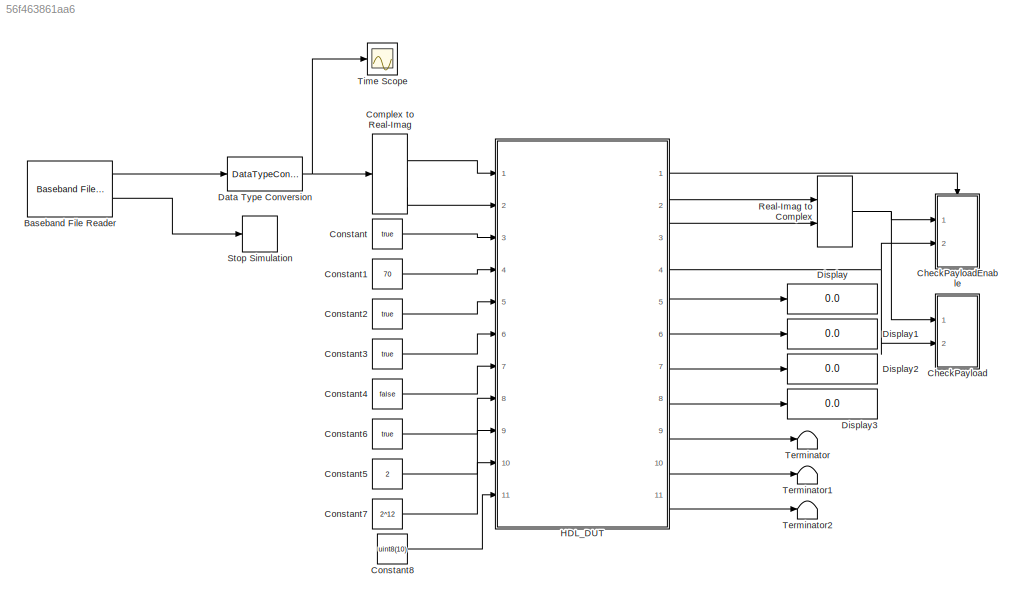
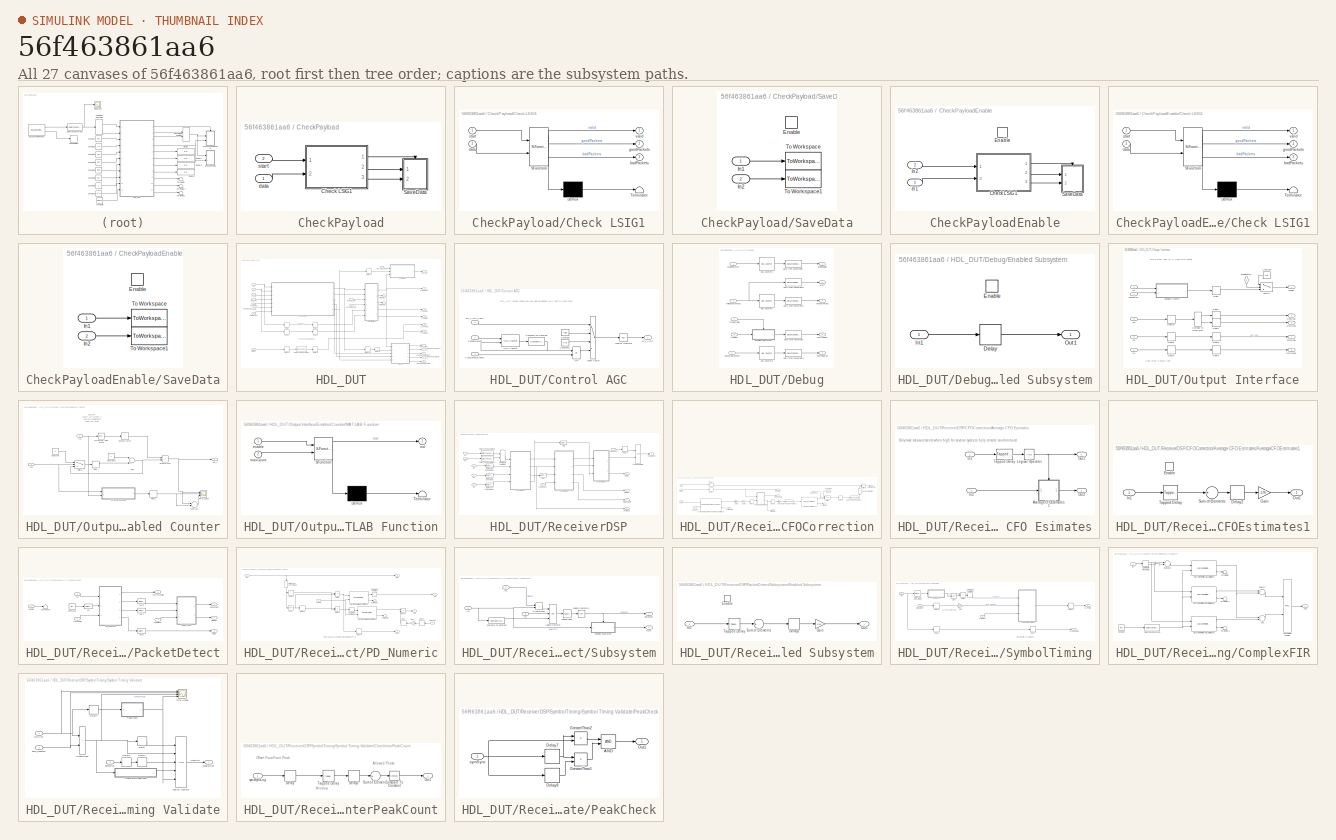
[diagram: thumbnail index - all 27 canvases of the model, root first then tree order]
MODEL slx_56f463861aa6
KIND model
CONFIG AbsTol = auto
CONFIG EnableMultiTasking = off
CONFIG FixedStep = auto
CONFIG InitFcn = % General\nFFT = 64;\nLSTFSymbol = FFT/4;\nFS = 20e6;\n\n% NCO\nFs = 20e6;\nres = 0.05;\nSFDR = 100;\nN = ceil(log2(Fs/res));\n%trueRes = Fs/(2^N);\n%phaseInc = round(Fc*2^N/Fs);\nQAB = round((SFDR-12)/6);\nDither = N - QAB;\n\n%% LLTF\na = load('lltf.mat');\nlltfFlip = conj(flipud(a.LLTF(:, 1)));\n\nlltfFlip = lltfFlip./(max(abs(lltfFlip))) .* 2^0;\n\n
CONFIG MaxStep = auto
CONFIG MinStep = auto
CONFIG RelTol = 1e-3
CONFIG SampleTimeConstraint = Unconstrained
CONFIG Solver = FixedStepDiscrete
CONFIG SolverName = FixedStepDiscrete
CONFIG StartTime = 0.0
CONFIG StopTime = 2
BLOCK [Reference] Baseband File Reader  REF=commsource2/Baseband File Reader
  Ports = [0, 2]
  SourceBlock = commsource2/Baseband File Reader
  SourceProductBaseCode = CM
  SourceProductName = Communications Toolbox
  SourceType = Baseband File Reader
BLOCK [SubSystem] CheckPayload
  Commented = on
  Ports = [2]
  RequestExecContextInheritance = off
BLOCK [SubSystem] CheckPayload/Check LSIG1
  ErrorFcn = Stateflow.Translate.translate
  PermitHierarchicalResolution = ExplicitOnly
  Ports = [2, 3]
  RequestExecContextInheritance = off
  SFBlockType = MATLAB Function
  TreatAsAtomicUnit = on
BLOCK [Demux] CheckPayload/Check LSIG1/ Demux 
  Outputs = 1
  Ports = [1, 1]
BLOCK [S-Function] CheckPayload/Check LSIG1/ SFunction 
  EnableBusSupport = on
  FunctionName = sf_sfun
  PortCounts = [2 4]
  Ports = [2, 4]
  SFcnIsStateOwnerBlock = off
  SFunctionDeploymentMode = off
  Tag = Stateflow S-Function ad9361_rx_wlan_testbench_targeting 2
BLOCK [Terminator] CheckPayload/Check LSIG1/ Terminator 
BLOCK [Outport] CheckPayload/Check LSIG1/badPackets
  IconDisplay = Port number
  Port = 3
BLOCK [Inport] CheckPayload/Check LSIG1/data
  IconDisplay = Port number
  Port = 2
BLOCK [Outport] CheckPayload/Check LSIG1/goodPackets
  IconDisplay = Port number
  Port = 2
BLOCK [Inport] CheckPayload/Check LSIG1/start
  IconDisplay = Port number
BLOCK [Outport] CheckPayload/Check LSIG1/valid
  IconDisplay = Port number
BLOCK [SubSystem] CheckPayload/SaveData
  Ports = [2, 0, 1]
  RequestExecContextInheritance = off
BLOCK [EnablePort] CheckPayload/SaveData/Enable
  Ports = []
BLOCK [Inport] CheckPayload/SaveData/In1
  IconDisplay = Port number
BLOCK [Inport] CheckPayload/SaveData/In2
  IconDisplay = Port number
  Port = 2
BLOCK [ToWorkspace] CheckPayload/SaveData/To Workspace
  FixptAsFi = on
  MaxDataPoints = inf
  Ports = [1]
  SampleTime = -1
  Save2DSignal = 2-D array (concatenate along first dimension)
  VariableName = goodpackets
BLOCK [ToWorkspace] CheckPayload/SaveData/To Workspace1
  FixptAsFi = on
  MaxDataPoints = inf
  Ports = [1]
  SampleTime = -1
  Save2DSignal = 2-D array (concatenate along first dimension)
  VariableName = badpackets
BLOCK [Inport] CheckPayload/data
  IconDisplay = Port number
  OutDataTypeStr = int16
BLOCK [Inport] CheckPayload/start
  IconDisplay = Port number
  Port = 2
BLOCK [SubSystem] CheckPayloadEnable
  Ports = [2, 0, 1]
  RequestExecContextInheritance = off
BLOCK [SubSystem] CheckPayloadEnable/Check LSIG1
  ErrorFcn = Stateflow.Translate.translate
  PermitHierarchicalResolution = ExplicitOnly
  Ports = [2, 3]
  RequestExecContextInheritance = off
  SFBlockType = MATLAB Function
  TreatAsAtomicUnit = on
BLOCK [Demux] CheckPayloadEnable/Check LSIG1/ Demux 
  Outputs = 1
  Ports = [1, 1]
BLOCK [S-Function] CheckPayloadEnable/Check LSIG1/ SFunction 
  EnableBusSupport = on
  FunctionName = sf_sfun
  PortCounts = [2 4]
  Ports = [2, 4]
  SFcnIsStateOwnerBlock = off
  SFunctionDeploymentMode = off
  Tag = Stateflow S-Function ad9361_rx_wlan_testbench_targeting 1
BLOCK [Terminator] CheckPayloadEnable/Check LSIG1/ Terminator 
BLOCK [Outport] CheckPayloadEnable/Check LSIG1/badPackets
  IconDisplay = Port number
  Port = 3
BLOCK [Inport] CheckPayloadEnable/Check LSIG1/data
  IconDisplay = Port number
  Port = 2
BLOCK [Outport] CheckPayloadEnable/Check LSIG1/goodPackets
  IconDisplay = Port number
  Port = 2
BLOCK [Inport] CheckPayloadEnable/Check LSIG1/start
  IconDisplay = Port number
BLOCK [Outport] CheckPayloadEnable/Check LSIG1/valid
  IconDisplay = Port number
BLOCK [EnablePort] CheckPayloadEnable/Enable
  Ports = []
BLOCK [Inport] CheckPayloadEnable/In1
  IconDisplay = Port number
BLOCK [Inport] CheckPayloadEnable/In2
  IconDisplay = Port number
  Port = 2
BLOCK [SubSystem] CheckPayloadEnable/SaveData
  Ports = [2, 0, 1]
  RequestExecContextInheritance = off
BLOCK [EnablePort] CheckPayloadEnable/SaveData/Enable
  Ports = []
BLOCK [Inport] CheckPayloadEnable/SaveData/In1
  IconDisplay = Port number
BLOCK [Inport] CheckPayloadEnable/SaveData/In2
  IconDisplay = Port number
  Port = 2
BLOCK [ToWorkspace] CheckPayloadEnable/SaveData/To Workspace
  FixptAsFi = on
  MaxDataPoints = inf
  Ports = [1]
  SampleTime = -1
  Save2DSignal = 2-D array (concatenate along first dimension)
  VariableName = goodpackets
BLOCK [ToWorkspace] CheckPayloadEnable/SaveData/To Workspace1
  FixptAsFi = on
  MaxDataPoints = inf
  Ports = [1]
  SampleTime = -1
  Save2DSignal = 2-D array (concatenate along first dimension)
  VariableName = badpackets
BLOCK [ComplexToRealImag] Complex to Real-Imag
  Ports = [1, 2]
BLOCK [Constant] Constant
  SampleTime = -1
  Value = true
BLOCK [Constant] Constant1
  OutDataTypeStr = int16
  SampleTime = -1
  Value = 70
BLOCK [Constant] Constant2
  LockScale = on
  SampleTime = -1
  Value = true
BLOCK [Constant] Constant3
  LockScale = on
  SampleTime = -1
  Value = true
BLOCK [Constant] Constant4
  LockScale = on
  SampleTime = -1
  Value = false
BLOCK [Constant] Constant5
  LockScale = on
  OutDataTypeStr = uint32
  SampleTime = -1
  Value = 2
BLOCK [Constant] Constant6
  LockScale = on
  SampleTime = -1
  Value = true
BLOCK [Constant] Constant7
  LockScale = on
  OutDataTypeStr = uint32
  SampleTime = -1
  Value = 2^12
BLOCK [Constant] Constant8
  LockScale = on
  OutDataTypeStr = uint8
  SampleTime = -1
  Value = uint8(10)
BLOCK [DataTypeConversion] Data Type Conversion
  OutDataTypeStr = int16
  RndMeth = Floor
  SaturateOnIntegerOverflow = off
BLOCK [Display] Display
  Decimation = 1
  Ports = [1]
BLOCK [Display] Display1
  Decimation = 1
  Ports = [1]
BLOCK [Display] Display2
  Decimation = 1
  Ports = [1]
BLOCK [Display] Display3
  Decimation = 1
  Ports = [1]
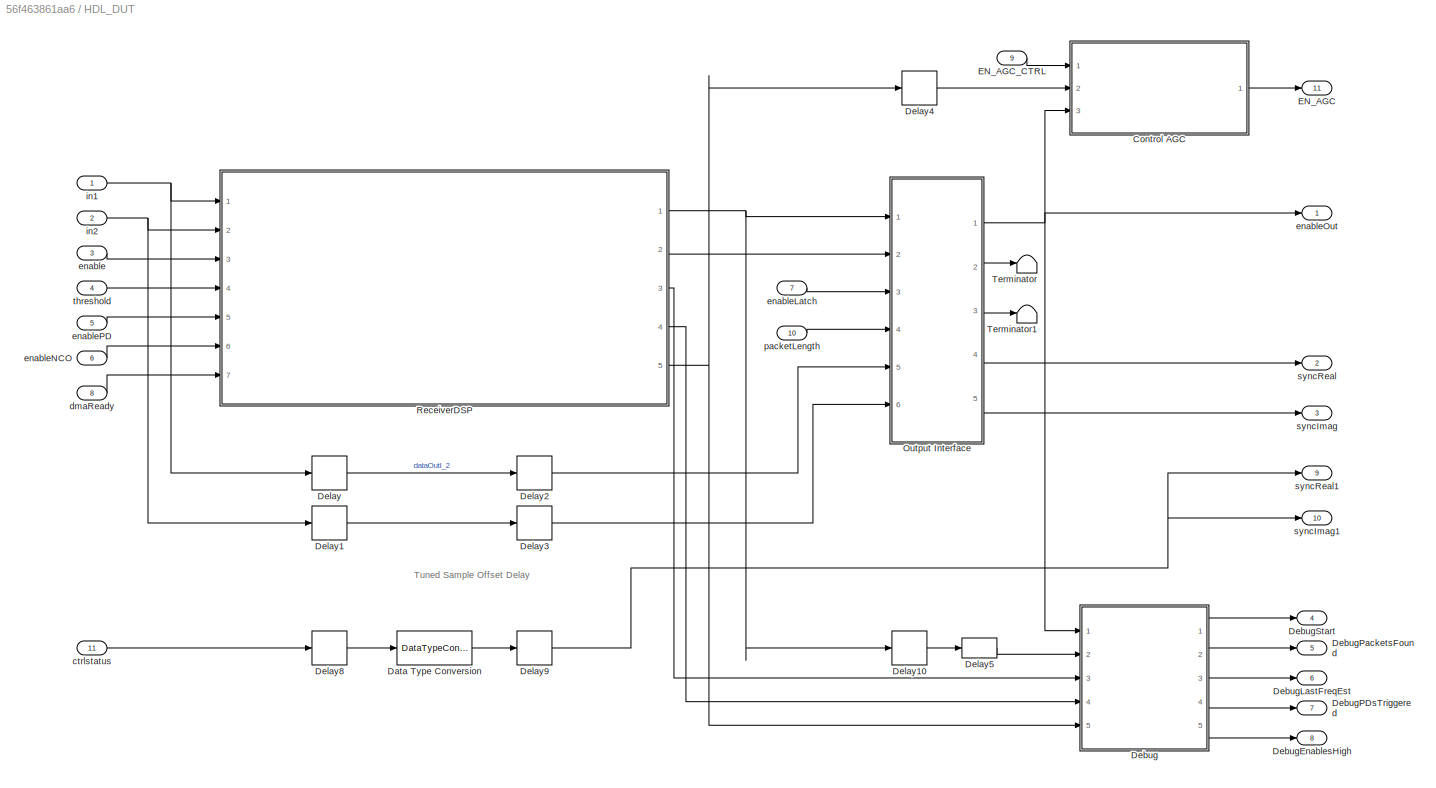
BLOCK [SubSystem] HDL_DUT
  Ports = [11, 11]
  RequestExecContextInheritance = off
  TreatAsAtomicUnit = on
BLOCK [SubSystem] HDL_DUT/Control AGC
  Ports = [3, 1]
  RequestExecContextInheritance = off
BLOCK [Reference] HDL_DUT/Control AGC/Compare To Constant  REF=simulink/Logic and Bit
Operations/Compare
To Constant
  Ports = [1, 1]
  SourceBlock = simulink/Logic and Bit\nOperations/Compare\nTo Constant
  SourceProductBaseCode = SL
  SourceProductName = Simulink
  SourceType = Compare To Constant
BLOCK [Constant] HDL_DUT/Control AGC/Constant
  SampleTime = -1
  Value = false
BLOCK [Constant] HDL_DUT/Control AGC/Constant1
  SampleTime = -1
  Value = true
BLOCK [Outport] HDL_DUT/Control AGC/EN_AGC
  IconDisplay = Port number
BLOCK [Inport] HDL_DUT/Control AGC/EN_AGC_CTRL
  IconDisplay = Port number
BLOCK [Reference] HDL_DUT/Control AGC/HDL Counter  REF=hdlsllib/Sources/HDL Counter
  Ports = [2, 1]
  SourceBlock = hdlsllib/Sources/HDL Counter
  SourceProductBaseCode = HD
  SourceProductName = HDL Coder
  SourceType = HDL Counter
BLOCK [MultiPortSwitch] HDL_DUT/Control AGC/Index Vector
  DataPortOrder = Zero-based contiguous
  InputSameDT = off
  Ports = [4, 1]
  SaturateOnIntegerOverflow = off
  zeroidx = on
BLOCK [Logic] HDL_DUT/Control AGC/Logical Operator
  AllPortsSameDT = off
  Operator = NOT
  OutDataTypeStr = boolean
  Ports = [1, 1]
BLOCK [Logic] HDL_DUT/Control AGC/OR
  AllPortsSameDT = off
  IconShape = distinctive
  Operator = OR
  OutDataTypeStr = boolean
  Ports = [2, 1]
BLOCK [Inport] HDL_DUT/Control AGC/PacketDetect
  IconDisplay = Port number
  Port = 2
BLOCK [Inport] HDL_DUT/Control AGC/SyncDetectEnable
  IconDisplay = Port number
  Port = 3
BLOCK [DataTypeConversion] HDL_DUT/Data Type Conversion
  OutDataTypeStr = int16
  RndMeth = Floor
  SaturateOnIntegerOverflow = off
BLOCK [SubSystem] HDL_DUT/Debug
  Ports = [5, 5]
  RequestExecContextInheritance = off
BLOCK [DataTypeConversion] HDL_DUT/Debug/Data Type Conversion
  OutDataTypeStr = int32
  RndMeth = Floor
  SaturateOnIntegerOverflow = off
BLOCK [DataTypeConversion] HDL_DUT/Debug/Data Type Conversion1
  OutDataTypeStr = int32
  RndMeth = Floor
  SaturateOnIntegerOverflow = off
BLOCK [DataTypeConversion] HDL_DUT/Debug/Data Type Conversion2
  OutDataTypeStr = int32
  RndMeth = Floor
  SaturateOnIntegerOverflow = off
BLOCK [DataTypeConversion] HDL_DUT/Debug/Data Type Conversion3
  OutDataTypeStr = int32
  RndMeth = Floor
  SaturateOnIntegerOverflow = off
BLOCK [DataTypeConversion] HDL_DUT/Debug/Data Type Conversion4
  OutDataTypeStr = int32
  RndMeth = Floor
  SaturateOnIntegerOverflow = off
BLOCK [SubSystem] HDL_DUT/Debug/Enabled Subsystem
  Ports = [1, 1, 1]
  RequestExecContextInheritance = off
  TreatAsAtomicUnit = on
BLOCK [Delay] HDL_DUT/Debug/Enabled Subsystem/Delay
  DelayLength = 1
  InputPortMap = u0
  Ports = [1, 1]
BLOCK [EnablePort] HDL_DUT/Debug/Enabled Subsystem/Enable
  Ports = []
BLOCK [Inport] HDL_DUT/Debug/Enabled Subsystem/In1
  IconDisplay = Port number
  OutDataTypeStr = fixdt(1,11,-3)
BLOCK [Outport] HDL_DUT/Debug/Enabled Subsystem/Out1
  IconDisplay = Port number
  InitialOutput = false
  OutDataTypeStr = fixdt(1,11,-3)
BLOCK [Inport] HDL_DUT/Debug/FreqEst
  IconDisplay = Port number
  OutDataTypeStr = fixdt(1,11,-3)
  Port = 3
BLOCK [Inport] HDL_DUT/Debug/FreqEstValid
  IconDisplay = Port number
  Port = 4
BLOCK [Inport] HDL_DUT/Debug/FullPacketsFound
  IconDisplay = Port number
  Port = 2
BLOCK [Reference] HDL_DUT/Debug/HDL Counter1  REF=hdlsllib/Sources/HDL Counter
  Ports = [1, 1]
  SourceBlock = hdlsllib/Sources/HDL Counter
  SourceProductBaseCode = HD
  SourceProductName = HDL Coder
  SourceType = HDL Counter
BLOCK [Reference] HDL_DUT/Debug/HDL Counter2  REF=hdlsllib/Sources/HDL Counter
  Ports = [1, 1]
  SourceBlock = hdlsllib/Sources/HDL Counter
  SourceProductBaseCode = HD
  SourceProductName = HDL Coder
  SourceType = HDL Counter
BLOCK [Reference] HDL_DUT/Debug/HDL Counter3  REF=hdlsllib/Sources/HDL Counter
  Ports = [1, 1]
  SourceBlock = hdlsllib/Sources/HDL Counter
  SourceProductBaseCode = HD
  SourceProductName = HDL Coder
  SourceType = HDL Counter
BLOCK [Outport] HDL_DUT/Debug/LastFreqEst
  IconDisplay = Port number
  Port = 3
BLOCK [Outport] HDL_DUT/Debug/PDsTriggered
  IconDisplay = Port number
  Port = 4
BLOCK [Inport] HDL_DUT/Debug/PacketDetections
  IconDisplay = Port number
  Port = 5
BLOCK [Outport] HDL_DUT/Debug/PacketsFound
  IconDisplay = Port number
  Port = 2
BLOCK [Inport] HDL_DUT/Debug/enableCounter
  IconDisplay = Port number
BLOCK [Outport] HDL_DUT/Debug/enablesHigh
  IconDisplay = Port number
  Port = 5
BLOCK [Outport] HDL_DUT/Debug/start
  IconDisplay = Port number
BLOCK [Outport] HDL_DUT/DebugEnablesHigh
  IconDisplay = Port number
  Port = 8
BLOCK [Outport] HDL_DUT/DebugLastFreqEst
  IconDisplay = Port number
  Port = 6
BLOCK [Outport] HDL_DUT/DebugPDsTriggered
  IconDisplay = Port number
  Port = 7
BLOCK [Outport] HDL_DUT/DebugPacketsFound
  IconDisplay = Port number
  Port = 5
BLOCK [Outport] HDL_DUT/DebugStart
  IconDisplay = Port number
  Port = 4
BLOCK [Delay] HDL_DUT/Delay
  DelayLength = 20+86+160
  InputPortMap = u0
  Ports = [1, 1]
BLOCK [Delay] HDL_DUT/Delay1
  DelayLength = 20+86+160
  InputPortMap = u0
  Ports = [1, 1]
BLOCK [Delay] HDL_DUT/Delay10
  InputPortMap = u0
  Ports = [1, 1]
BLOCK [Delay] HDL_DUT/Delay2
  DelayLength = 7
  InputPortMap = u0
  Ports = [1, 1]
BLOCK [Delay] HDL_DUT/Delay3
  DelayLength = 7
  InputPortMap = u0
  Ports = [1, 1]
BLOCK [Delay] HDL_DUT/Delay4
  DelayLength = 1
  InputPortMap = u0
  Ports = [1, 1]
BLOCK [Delay] HDL_DUT/Delay5
  DelayLength = 1
  InputPortMap = u0
  Ports = [1, 1]
BLOCK [Delay] HDL_DUT/Delay8
  DelayLength = 20+86+160
  InputPortMap = u0
  Ports = [1, 1]
BLOCK [Delay] HDL_DUT/Delay9
  DelayLength = 7
  InputPortMap = u0
  Ports = [1, 1]
BLOCK [Outport] HDL_DUT/EN_AGC
  IconDisplay = Port number
  OutDataTypeStr = boolean
  Port = 11
BLOCK [Inport] HDL_DUT/EN_AGC_CTRL
  IconDisplay = Port number
  OutDataTypeStr = uint32
  Port = 9
BLOCK [SubSystem] HDL_DUT/Output Interface
  Ports = [6, 5]
  RequestExecContextInheritance = off
BLOCK [ComplexToRealImag] HDL_DUT/Output Interface/Complex to Real-Imag
  Ports = [1, 2]
BLOCK [Constant] HDL_DUT/Output Interface/Constant
  SampleTime = -1
  Value = true
BLOCK [Delay] HDL_DUT/Output Interface/Delay
  DelayLength = 1
  InputPortMap = u0
  Ports = [1, 1]
BLOCK [Delay] HDL_DUT/Output Interface/Delay1
  DelayLength = 1
  InputPortMap = u0
  Ports = [1, 1]
BLOCK [Delay] HDL_DUT/Output Interface/Delay10
  InputPortMap = u0
  Ports = [1, 1]
BLOCK [Delay] HDL_DUT/Output Interface/Delay2
  DelayLength = 1
  InputPortMap = u0
  Ports = [1, 1]
BLOCK [Delay] HDL_DUT/Output Interface/Delay3
  DelayLength = 1
  InputPortMap = u0
  Ports = [1, 1]
BLOCK [Delay] HDL_DUT/Output Interface/Delay4
  DelayLength = 1
  InputPortMap = u0
  Ports = [1, 1]
BLOCK [Delay] HDL_DUT/Output Interface/Delay8
  InputPortMap = u0
  Ports = [1, 1]
BLOCK [Delay] HDL_DUT/Output Interface/Delay9
  InputPortMap = u0
  Ports = [1, 1]
BLOCK [SubSystem] HDL_DUT/Output Interface/Enabled Counter
  Ports = [2, 1]
  RequestExecContextInheritance = off
BLOCK [Sum] HDL_DUT/Output Interface/Enabled Counter/Add
  AccumDataTypeStr = uint16
  InputSameDT = off
  OutDataTypeStr = uint16
  Ports = [2, 1]
BLOCK [Constant] HDL_DUT/Output Interface/Enabled Counter/Constant
  OutDataTypeStr = uint16
  SampleTime = -1
  Value = 0
BLOCK [Constant] HDL_DUT/Output Interface/Enabled Counter/Constant2
  OutDataTypeStr = uint8
  SampleTime = -1
BLOCK [Delay] HDL_DUT/Output Interface/Enabled Counter/Delay
  DelayLength = 1
  InitialCondition = 2^15
  InputPortMap = u0
  Ports = [1, 1]
BLOCK [Delay] HDL_DUT/Output Interface/Enabled Counter/Delay1
  Commented = on
  DelayLength = 1
  InputPortMap = u0
  Ports = [1, 1]
BLOCK [RelationalOperator] HDL_DUT/Output Interface/Enabled Counter/GreaterThan
  InputSameDT = off
  Operator = >
  OutDataTypeStr = boolean
  Ports = [2, 1]
  RndMeth = Simplest
BLOCK [Inport] HDL_DUT/Output Interface/Enabled Counter/In1
  IconDisplay = Port number
BLOCK [Inport] HDL_DUT/Output Interface/Enabled Counter/In2
  IconDisplay = Port number
  Port = 2
BLOCK [Reference] HDL_DUT/Output Interface/Enabled Counter/Increment Real World  REF=simulink/Additional Math
& Discrete/Additional Math:
Increment - Decrement/Increment
Real World
  Ports = [1, 1]
  SourceBlock = simulink/Additional Math\n& Discrete/Additional Math:\nIncrement - Decrement/Increment\nReal World
  SourceProductBaseCode = SL
  SourceProductName = Simulink
  SourceType = Real World Value Increment
BLOCK [SubSystem] HDL_DUT/Output Interface/Enabled Counter/MATLAB Function
  Commented = on
  ErrorFcn = Stateflow.Translate.translate
  PermitHierarchicalResolution = ExplicitOnly
  Ports = [2, 1]
  RequestExecContextInheritance = off
  SFBlockType = MATLAB Function
  TreatAsAtomicUnit = on
BLOCK [Demux] HDL_DUT/Output Interface/Enabled Counter/MATLAB Function/ Demux 
  Outputs = 1
  Ports = [1, 1]
BLOCK [S-Function] HDL_DUT/Output Interface/Enabled Counter/MATLAB Function/ SFunction 
  EnableBusSupport = on
  FunctionName = sf_sfun
  PortCounts = [2 2]
  Ports = [2, 2]
  SFcnIsStateOwnerBlock = off
  SFunctionDeploymentMode = off
  Tag = Stateflow S-Function ad9361_rx_wlan_testbench_targeting 3
BLOCK [Terminator] HDL_DUT/Output Interface/Enabled Counter/MATLAB Function/ Terminator 
BLOCK [Inport] HDL_DUT/Output Interface/Enabled Counter/MATLAB Function/enable
  IconDisplay = Port number
BLOCK [Inport] HDL_DUT/Output Interface/Enabled Counter/MATLAB Function/maxCount
  IconDisplay = Port number
  Port = 2
BLOCK [Outport] HDL_DUT/Output Interface/Enabled Counter/MATLAB Function/out
  IconDisplay = Port number
BLOCK [Delay] HDL_DUT/Output Interface/Enabled Counter/NonZero Start
  DelayLength = 1
  InitialCondition = 2^14
  InputPortMap = u0
  Ports = [1, 1]
BLOCK [Outport] HDL_DUT/Output Interface/Enabled Counter/Out1
  IconDisplay = Port number
BLOCK [Sum] HDL_DUT/Output Interface/Enabled Counter/Subtract
  Commented = on
  InputSameDT = off
  Inputs = +-
  OutDataTypeStr = Inherit: Inherit via internal rule
  Ports = [2, 1]
  SaturateOnIntegerOverflow = off
BLOCK [Switch] HDL_DUT/Output Interface/Enabled Counter/Switch
  Criteria = u2 > Threshold
  InputSameDT = off
  SaturateOnIntegerOverflow = off
BLOCK [Scope] HDL_DUT/Output Interface/Enabled Counter/Time Scope
  Commented = on
  DefaultConfigurationName = spbscopes.TimeScopeBlockCfg
  Floating = off
  NumInputPorts = 3
  Ports = [3]
  ScopeSpecificationString = spbscopes.TimeScopeBlockCfg('CurrentConfiguration', extmgr.ConfigurationSet(extmgr.Configuration('Core','General UI',true,'FigureColor',[0.156862745098039 0.156862745098039 0.156862745098039]),extmgr.Configuration('Core','Source UI',true),extmgr.Configuration('Sources','WiredSimulink',true,'DataLoggingVariableName','ScopeData1'),extmgr.Configuration('Visuals','Time Domain',true,'DisplayLayoutDimen...<+2836ch>
  UserDataPersistent = on
BLOCK [Inport] HDL_DUT/Output Interface/In1
  IconDisplay = Port number
BLOCK [Inport] HDL_DUT/Output Interface/In2
  IconDisplay = Port number
  OutDataTypeStr = fixdt(1,11,-1)
  Port = 2
BLOCK [Inport] HDL_DUT/Output Interface/In3
  IconDisplay = Port number
  Port = 5
BLOCK [Inport] HDL_DUT/Output Interface/In4
  IconDisplay = Port number
  Port = 6
BLOCK [Switch] HDL_DUT/Output Interface/Switch
  Criteria = u2 > Threshold
  InputSameDT = off
  SaturateOnIntegerOverflow = off
BLOCK [Outport] HDL_DUT/Output Interface/enable
  IconDisplay = Port number
BLOCK [Inport] HDL_DUT/Output Interface/enableLatch
  IconDisplay = Port number
  Port = 3
BLOCK [Inport] HDL_DUT/Output Interface/packetLen
  IconDisplay = Port number
  Port = 4
BLOCK [Outport] HDL_DUT/Output Interface/syncImag
  IconDisplay = Port number
  Port = 3
BLOCK [Outport] HDL_DUT/Output Interface/syncImag1
  IconDisplay = Port number
  Port = 5
BLOCK [Outport] HDL_DUT/Output Interface/syncReal
  IconDisplay = Port number
  Port = 2
BLOCK [Outport] HDL_DUT/Output Interface/syncReal1
  IconDisplay = Port number
  Port = 4
BLOCK [SubSystem] HDL_DUT/ReceiverDSP
  Ports = [7, 5]
  RequestExecContextInheritance = off
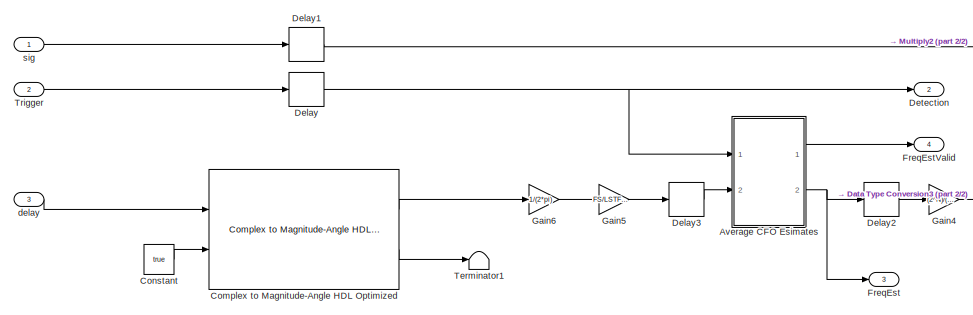
[diagram: HDL_DUT/ReceiverDSP/CFOCorrection - part 1/2, left side, full height]
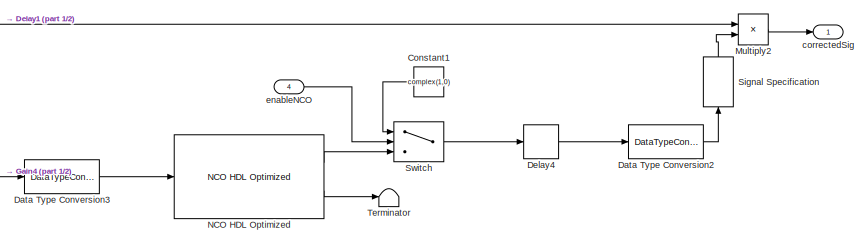
[diagram: HDL_DUT/ReceiverDSP/CFOCorrection - part 2/2, middle right region]
BLOCK [SubSystem] HDL_DUT/ReceiverDSP/CFOCorrection
  Ports = [4, 4]
  RequestExecContextInheritance = off
BLOCK [SubSystem] HDL_DUT/ReceiverDSP/CFOCorrection/Average CFO Esimates
  Ports = [2, 2]
  RequestExecContextInheritance = off
BLOCK [SubSystem] HDL_DUT/ReceiverDSP/CFOCorrection/Average CFO Esimates/AverageCFOEstimates1
  Ports = [1, 1, 1]
  RequestExecContextInheritance = off
BLOCK [Delay] HDL_DUT/ReceiverDSP/CFOCorrection/Average CFO Esimates/AverageCFOEstimates1/Delay2
  DelayLength = 1
  InputPortMap = u0
  Ports = [1, 1]
BLOCK [EnablePort] HDL_DUT/ReceiverDSP/CFOCorrection/Average CFO Esimates/AverageCFOEstimates1/Enable
  Ports = []
BLOCK [Gain] HDL_DUT/ReceiverDSP/CFOCorrection/Average CFO Esimates/AverageCFOEstimates1/Gain
  Gain = 1/N
  OutDataTypeStr = fixdt(1,11,-3)
  ParamDataTypeStr = fixdt(0,11,14)
  SaturateOnIntegerOverflow = off
BLOCK [Inport] HDL_DUT/ReceiverDSP/CFOCorrection/Average CFO Esimates/AverageCFOEstimates1/In1
  IconDisplay = Port number
  OutDataTypeStr = fixdt(1,11,-10)
BLOCK [Outport] HDL_DUT/ReceiverDSP/CFOCorrection/Average CFO Esimates/AverageCFOEstimates1/Out1
  IconDisplay = Port number
  InitialOutput = 0
  OutDataTypeStr = fixdt(1,11,-3)
BLOCK [Sum] HDL_DUT/ReceiverDSP/CFOCorrection/Average CFO Esimates/AverageCFOEstimates1/Sum of Elements
  AccumDataTypeStr = fixdt(1,11,-7)
  InputSameDT = off
  Inputs = +
  OutDataTypeStr = fixdt(1,11,-7)
  Ports = [1, 1]
  SaturateOnIntegerOverflow = off
BLOCK [Reference] HDL_DUT/ReceiverDSP/CFOCorrection/Average CFO Esimates/AverageCFOEstimates1/Tapped Delay  REF=simulink/Discrete/Tapped Delay
  Ports = [1, 1]
  SourceBlock = simulink/Discrete/Tapped Delay
  SourceProductBaseCode = SL
  SourceProductName = Simulink
  SourceType = Tapped Delay Line
BLOCK [Inport] HDL_DUT/ReceiverDSP/CFOCorrection/Average CFO Esimates/In1
  IconDisplay = Port number
BLOCK [Inport] HDL_DUT/ReceiverDSP/CFOCorrection/Average CFO Esimates/In2
  IconDisplay = Port number
  OutDataTypeStr = fixdt(1,11,-10)
  Port = 2
BLOCK [Logic] HDL_DUT/ReceiverDSP/CFOCorrection/Average CFO Esimates/Logical Operator
  AllPortsSameDT = off
  Inputs = 1
  OutDataTypeStr = boolean
  Ports = [1, 1]
BLOCK [Outport] HDL_DUT/ReceiverDSP/CFOCorrection/Average CFO Esimates/Out1
  IconDisplay = Port number
BLOCK [Outport] HDL_DUT/ReceiverDSP/CFOCorrection/Average CFO Esimates/Out2
  IconDisplay = Port number
  OutDataTypeStr = fixdt(1,11,-3)
  Port = 2
BLOCK [Reference] HDL_DUT/ReceiverDSP/CFOCorrection/Average CFO Esimates/Tapped Delay  REF=simulink/Discrete/Tapped Delay
  Ports = [1, 1]
  SourceBlock = simulink/Discrete/Tapped Delay
  SourceProductBaseCode = SL
  SourceProductName = Simulink
  SourceType = Tapped Delay Line
BLOCK [Reference] HDL_DUT/ReceiverDSP/CFOCorrection/Complex to Magnitude-Angle HDL Optimized  REF=dspmathops/Complex to Magnitude-Angle
HDL Optimized
  Ports = [2, 2]
  SourceBlock = dspmathops/Complex to Magnitude-Angle\nHDL Optimized
  SourceProductBaseCode = DS
  SourceProductName = DSP System Toolbox
  SourceType = Complex to Magnitude-Angle HDL Optimized
BLOCK [Constant] HDL_DUT/ReceiverDSP/CFOCorrection/Constant
  OutDataTypeStr = boolean
  SampleTime = -1
  Value = true
BLOCK [Constant] HDL_DUT/ReceiverDSP/CFOCorrection/Constant1
  OutDataTypeStr = fixdt(0,11,10)
  SampleTime = -1
  Value = complex(1,0)
BLOCK [DataTypeConversion] HDL_DUT/ReceiverDSP/CFOCorrection/Data Type Conversion2
  OutDataTypeStr = fixdt(0,11,10)
  RndMeth = Floor
  SaturateOnIntegerOverflow = off
BLOCK [DataTypeConversion] HDL_DUT/ReceiverDSP/CFOCorrection/Data Type Conversion3
  OutDataTypeStr = fixdt(1,11,-8)
  RndMeth = Floor
  SaturateOnIntegerOverflow = off
BLOCK [Delay] HDL_DUT/ReceiverDSP/CFOCorrection/Delay
  DelayLength = 20
  InputPortMap = u0
  Ports = [1, 1]
BLOCK [Delay] HDL_DUT/ReceiverDSP/CFOCorrection/Delay1
  DelayLength = 20
  InputPortMap = u0
  Ports = [1, 1]
BLOCK [Delay] HDL_DUT/ReceiverDSP/CFOCorrection/Delay2
  DelayLength = 1
  InputPortMap = u0
  Ports = [1, 1]
BLOCK [Delay] HDL_DUT/ReceiverDSP/CFOCorrection/Delay3
  DelayLength = 1
  InputPortMap = u0
  Ports = [1, 1]
BLOCK [Delay] HDL_DUT/ReceiverDSP/CFOCorrection/Delay4
  DelayLength = 1
  InputPortMap = u0
  Ports = [1, 1]
BLOCK [Outport] HDL_DUT/ReceiverDSP/CFOCorrection/Detection
  IconDisplay = Port number
  Port = 2
BLOCK [Outport] HDL_DUT/ReceiverDSP/CFOCorrection/FreqEst
  IconDisplay = Port number
  OutDataTypeStr = fixdt(1,11,-3)
  Port = 3
BLOCK [Outport] HDL_DUT/ReceiverDSP/CFOCorrection/FreqEstValid
  IconDisplay = Port number
  Port = 4
BLOCK [Gain] HDL_DUT/ReceiverDSP/CFOCorrection/Gain4
  Gain = (2^N)/(Fs)
  OutDataTypeStr = fixdt(1,11,-8)
  ParamDataTypeStr = fixdt(0,11,6)
  SaturateOnIntegerOverflow = off
BLOCK [Gain] HDL_DUT/ReceiverDSP/CFOCorrection/Gain5
  Gain = FS/LSTFSymbol
  OutDataTypeStr = fixdt(1,11,-10)
  ParamDataTypeStr = fixdt(0,11,-10)
  SaturateOnIntegerOverflow = off
BLOCK [Gain] HDL_DUT/ReceiverDSP/CFOCorrection/Gain6
  Gain = 1/(2*pi)
  OutDataTypeStr = fixdt(1,11,10)
  ParamDataTypeStr = fixdt(0,11,13)
  SaturateOnIntegerOverflow = off
BLOCK [Product] HDL_DUT/ReceiverDSP/CFOCorrection/Multiply2
  InputSameDT = off
  OutDataTypeStr = fixdt(1,11,-1)
  Ports = [2, 1]
  RndMeth = Floor
  SaturateOnIntegerOverflow = off
BLOCK [Reference] HDL_DUT/ReceiverDSP/CFOCorrection/NCO HDL Optimized  REF=dspsigops/NCO
HDL Optimized
  Ports = [1, 2]
  SourceBlock = dspsigops/NCO\nHDL Optimized
  SourceProductBaseCode = DS
  SourceProductName = DSP System Toolbox
  SourceType = NCO HDL Optimized
BLOCK [SignalSpecification] HDL_DUT/ReceiverDSP/CFOCorrection/Signal Specification
  Dimensions = 1
  OutDataTypeStr = fixdt(0,11,10)
BLOCK [Switch] HDL_DUT/ReceiverDSP/CFOCorrection/Switch
  Criteria = u2 > Threshold
  InputSameDT = off
  OutDataTypeStr = fixdt(0,11,10)
  SaturateOnIntegerOverflow = off
BLOCK [Terminator] HDL_DUT/ReceiverDSP/CFOCorrection/Terminator
BLOCK [Terminator] HDL_DUT/ReceiverDSP/CFOCorrection/Terminator1
BLOCK [Inport] HDL_DUT/ReceiverDSP/CFOCorrection/Trigger
  IconDisplay = Port number
  Port = 2
BLOCK [Outport] HDL_DUT/ReceiverDSP/CFOCorrection/correctedSig
  IconDisplay = Port number
  OutDataTypeStr = fixdt(1,11,-1)
BLOCK [Inport] HDL_DUT/ReceiverDSP/CFOCorrection/delay
  IconDisplay = Port number
  OutDataTypeStr = fixdt(1,11,-11)
  Port = 3
BLOCK [Inport] HDL_DUT/ReceiverDSP/CFOCorrection/enableNCO
  IconDisplay = Port number
  OutDataTypeStr = boolean
  Port = 4
BLOCK [Inport] HDL_DUT/ReceiverDSP/CFOCorrection/sig
  IconDisplay = Port number
  OutDataTypeStr = fixdt(1,11,-1)
BLOCK [DataTypeConversion] HDL_DUT/ReceiverDSP/Data Type Conversion
  OutDataTypeStr = fixdt(0,11,4)
  RndMeth = Floor
  SaturateOnIntegerOverflow = off
BLOCK [DataTypeConversion] HDL_DUT/ReceiverDSP/Data Type Conversion1
  RndMeth = Floor
  SaturateOnIntegerOverflow = off
BLOCK [DataTypeConversion] HDL_DUT/ReceiverDSP/Data Type Conversion2
  OutDataTypeStr = fixdt(0,11,10)
  RndMeth = Floor
  SaturateOnIntegerOverflow = off
BLOCK [DataTypeConversion] HDL_DUT/ReceiverDSP/Data Type Conversion3
  OutDataTypeStr = fixdt(1,11,-1)
  RndMeth = Floor
  SaturateOnIntegerOverflow = off
BLOCK [DataTypeConversion] HDL_DUT/ReceiverDSP/Data Type Conversion4
  OutDataTypeStr = fixdt(1,11,-1)
  RndMeth = Floor
  SaturateOnIntegerOverflow = off
BLOCK [Delay] HDL_DUT/ReceiverDSP/Delay2
  DelayLength = 1
  InputPortMap = u0
  Ports = [1, 1]
BLOCK [Outport] HDL_DUT/ReceiverDSP/FreqEst
  IconDisplay = Port number
  OutDataTypeStr = fixdt(1,11,-3)
  Port = 3
BLOCK [Outport] HDL_DUT/ReceiverDSP/FreqEstValid
  IconDisplay = Port number
  Port = 4
BLOCK [Inport] HDL_DUT/ReceiverDSP/In1
  IconDisplay = Port number
  OutDataTypeStr = int16
BLOCK [Inport] HDL_DUT/ReceiverDSP/In2
  IconDisplay = Port number
  OutDataTypeStr = int16
  Port = 2
BLOCK [Inport] HDL_DUT/ReceiverDSP/In3
  IconDisplay = Port number
  Port = 3
BLOCK [Inport] HDL_DUT/ReceiverDSP/In4
  IconDisplay = Port number
  Port = 4
BLOCK [Inport] HDL_DUT/ReceiverDSP/In5
  IconDisplay = Port number
  Port = 5
BLOCK [Logic] HDL_DUT/ReceiverDSP/Logical Operator
  AllPortsSameDT = off
  OutDataTypeStr = boolean
  Ports = [2, 1]
BLOCK [Outport] HDL_DUT/ReceiverDSP/PDTrigger
  IconDisplay = Port number
  Port = 5
BLOCK [SubSystem] HDL_DUT/ReceiverDSP/PacketDetect
  Ports = [4, 4]
  RequestExecContextInheritance = off
BLOCK [Constant] HDL_DUT/ReceiverDSP/PacketDetect/Constant
  SampleTime = -1
  Value = true
BLOCK [Outport] HDL_DUT/ReceiverDSP/PacketDetect/GainEst
  IconDisplay = Port number
  OutDataTypeStr = fixdt(0,11,-12)
  Port = 4
BLOCK [Inport] HDL_DUT/ReceiverDSP/PacketDetect/In1
  IconDisplay = Port number
  OutDataTypeStr = fixdt(1,11,-1)
BLOCK [SubSystem] HDL_DUT/ReceiverDSP/PacketDetect/PD_Numeric
  Ports = [3, 4]
  RequestExecContextInheritance = off
BLOCK [ComplexToRealImag] HDL_DUT/ReceiverDSP/PacketDetect/PD_Numeric/Complex to Real-Imag
  Output = Real
  Ports = [1, 1]
BLOCK [ComplexToRealImag] HDL_DUT/ReceiverDSP/PacketDetect/PD_Numeric/Complex to Real-Imag1
  Output = Real
  Ports = [1, 1]
BLOCK [Math] HDL_DUT/ReceiverDSP/PacketDetect/PD_Numeric/Conj
  Operator = conj
  OutDataTypeStr = double
  Ports = [1, 1]
BLOCK [DataTypeConversion] HDL_DUT/ReceiverDSP/PacketDetect/PD_Numeric/Data Type Conversion1
  OutDataTypeStr = fixdt(1,11,-1)
  RndMeth = Floor
BLOCK [Delay] HDL_DUT/ReceiverDSP/PacketDetect/PD_Numeric/Delay
  InputPortMap = u0
  Ports = [1, 1]
BLOCK [Delay] HDL_DUT/ReceiverDSP/PacketDetect/PD_Numeric/Delay1
  InputPortMap = u0
  Ports = [1, 1]
BLOCK [Delay] HDL_DUT/ReceiverDSP/PacketDetect/PD_Numeric/Delay3
  DelayLength = 16
  InputPortMap = u0
  Ports = [1, 1]
BLOCK [Delay] HDL_DUT/ReceiverDSP/PacketDetect/PD_Numeric/Delay4
  DelayLength = 16
  InputPortMap = u0
  Ports = [1, 1]
BLOCK [Delay] HDL_DUT/ReceiverDSP/PacketDetect/PD_Numeric/Delay5
  DelayLength = 3*LSTFSymbol-1
  InputPortMap = u0
  Ports = [1, 1]
BLOCK [Reference] HDL_DUT/ReceiverDSP/PacketDetect/PD_Numeric/Discrete FIR Filter HDL Optimized  REF=dsphdlfiltering/Discrete FIR Filter
HDL Optimized
  Ports = [2, 2]
  SourceBlock = dsphdlfiltering/Discrete FIR Filter\nHDL Optimized
  SourceProductBaseCode = DS
  SourceProductName = DSP System Toolbox
  SourceType = Discrete FIR Filter HDL Optimized
BLOCK [Reference] HDL_DUT/ReceiverDSP/PacketDetect/PD_Numeric/Discrete FIR Filter HDL Optimized1  REF=dsphdlfiltering/Discrete FIR Filter
HDL Optimized
  Ports = [2, 2]
  SourceBlock = dsphdlfiltering/Discrete FIR Filter\nHDL Optimized
  SourceProductBaseCode = DS
  SourceProductName = DSP System Toolbox
  SourceType = Discrete FIR Filter HDL Optimized
BLOCK [Gain] HDL_DUT/ReceiverDSP/PacketDetect/PD_Numeric/Gain
  Gain = 1/100
  OutDataTypeStr = fixdt(0,11,11)
  ParamDataTypeStr = fixdt(0,11,17)
  SaturateOnIntegerOverflow = off
BLOCK [Inport] HDL_DUT/ReceiverDSP/PacketDetect/PD_Numeric/In1
  IconDisplay = Port number
  OutDataTypeStr = fixdt(1,11,-1)
BLOCK [Product] HDL_DUT/ReceiverDSP/PacketDetect/PD_Numeric/Multiply
  InputSameDT = off
  OutDataTypeStr = fixdt(1,11,-11)
  Ports = [2, 1]
  RndMeth = Floor
BLOCK [Product] HDL_DUT/ReceiverDSP/PacketDetect/PD_Numeric/Multiply3
  InputSameDT = off
  OutDataTypeStr = fixdt(1,11,-12)
  Ports = [2, 1]
  RndMeth = Floor
  SaturateOnIntegerOverflow = off
BLOCK [Outport] HDL_DUT/ReceiverDSP/PacketDetect/PD_Numeric/Out1
  IconDisplay = Port number
  OutDataTypeStr = fixdt(1,11,-1)
BLOCK [Outport] HDL_DUT/ReceiverDSP/PacketDetect/PD_Numeric/Out2
  IconDisplay = Port number
  Port = 2
BLOCK [Outport] HDL_DUT/ReceiverDSP/PacketDetect/PD_Numeric/Out3
  IconDisplay = Port number
  OutDataTypeStr = fixdt(0,11,-13)
  Port = 3
BLOCK [Outport] HDL_DUT/ReceiverDSP/PacketDetect/PD_Numeric/Out4
  IconDisplay = Port number
  OutDataTypeStr = fixdt(1,11,-11)
  Port = 4
BLOCK [Product] HDL_DUT/ReceiverDSP/PacketDetect/PD_Numeric/Product
  InputSameDT = off
  OutDataTypeStr = fixdt(0,11,-13)
  Ports = [2, 1]
  RndMeth = Floor
BLOCK [Terminator] HDL_DUT/ReceiverDSP/PacketDetect/PD_Numeric/Terminator
BLOCK [Terminator] HDL_DUT/ReceiverDSP/PacketDetect/PD_Numeric/Terminator1
BLOCK [Inport] HDL_DUT/ReceiverDSP/PacketDetect/PD_Numeric/enable
  IconDisplay = Port number
  OutDataTypeStr = boolean
  Port = 2
BLOCK [Inport] HDL_DUT/ReceiverDSP/PacketDetect/PD_Numeric/threshold
  IconDisplay = Port number
  OutDataTypeStr = fixdt(0,11,4)
  Port = 3
BLOCK [SubSystem] HDL_DUT/ReceiverDSP/PacketDetect/Subsystem
  Ports = [3, 2]
  RequestExecContextInheritance = off
BLOCK [Reference] HDL_DUT/ReceiverDSP/PacketDetect/Subsystem/Compare To Constant  REF=simulink/Logic and Bit
Operations/Compare
To Constant
  Ports = [1, 1]
  SourceBlock = simulink/Logic and Bit\nOperations/Compare\nTo Constant
  SourceProductBaseCode = SL
  SourceProductName = Simulink
  SourceType = Compare To Constant
BLOCK [SubSystem] HDL_DUT/ReceiverDSP/PacketDetect/Subsystem/Enabled Subsystem
  Ports = [1, 1, 1]
  RequestExecContextInheritance = off
  TreatAsAtomicUnit = on
BLOCK [Delay] HDL_DUT/ReceiverDSP/PacketDetect/Subsystem/Enabled Subsystem/Delay2
  DelayLength = 1
  InputPortMap = u0
  Ports = [1, 1]
BLOCK [EnablePort] HDL_DUT/ReceiverDSP/PacketDetect/Subsystem/Enabled Subsystem/Enable
  Ports = []
BLOCK [Gain] HDL_DUT/ReceiverDSP/PacketDetect/Subsystem/Enabled Subsystem/Gain
  Gain = 1/15
  OutDataTypeStr = fixdt(0,11,-12)
  ParamDataTypeStr = fixdt(0,11,14)
  SaturateOnIntegerOverflow = off
BLOCK [Inport] HDL_DUT/ReceiverDSP/PacketDetect/Subsystem/Enabled Subsystem/In1
  IconDisplay = Port number
  OutDataTypeStr = fixdt(0,11,-13)
BLOCK [Outport] HDL_DUT/ReceiverDSP/PacketDetect/Subsystem/Enabled Subsystem/Out1
  IconDisplay = Port number
  InitialOutput = 0
  OutDataTypeStr = fixdt(0,11,-12)
BLOCK [Sum] HDL_DUT/ReceiverDSP/PacketDetect/Subsystem/Enabled Subsystem/Sum of Elements
  AccumDataTypeStr = fixdt(0,11,-16)
  InputSameDT = off
  Inputs = +
  OutDataTypeStr = fixdt(0,11,-16)
  Ports = [1, 1]
  SaturateOnIntegerOverflow = off
BLOCK [Reference] HDL_DUT/ReceiverDSP/PacketDetect/Subsystem/Enabled Subsystem/Tapped Delay  REF=simulink/Discrete/Tapped Delay
  Ports = [1, 1]
  SourceBlock = simulink/Discrete/Tapped Delay
  SourceProductBaseCode = SL
  SourceProductName = Simulink
  SourceType = Tapped Delay Line
BLOCK [RelationalOperator] HDL_DUT/ReceiverDSP/PacketDetect/Subsystem/GreaterThan
  InputSameDT = off
  Operator = >
  OutDataTypeStr = boolean
  Ports = [2, 1]
  RndMeth = Simplest
BLOCK [Inport] HDL_DUT/ReceiverDSP/PacketDetect/Subsystem/In1
  IconDisplay = Port number
  OutDataTypeStr = fixdt(1,11,-13)
BLOCK [Inport] HDL_DUT/ReceiverDSP/PacketDetect/Subsystem/In3
  IconDisplay = Port number
  OutDataTypeStr = fixdt(0,11,-13)
  Port = 2
BLOCK [Inport] HDL_DUT/ReceiverDSP/PacketDetect/Subsystem/In4
  IconDisplay = Port number
  Port = 3
BLOCK [Logic] HDL_DUT/ReceiverDSP/PacketDetect/Subsystem/Logical Operator
  AllPortsSameDT = off
  Inputs = 3
  OutDataTypeStr = boolean
  Ports = [3, 1]
BLOCK [Logic] HDL_DUT/ReceiverDSP/PacketDetect/Subsystem/Logical Operator1
  AllPortsSameDT = off
  Inputs = 1
  OutDataTypeStr = boolean
  Ports = [1, 1]
BLOCK [Outport] HDL_DUT/ReceiverDSP/PacketDetect/Subsystem/Out2
  IconDisplay = Port number
  OutDataTypeStr = fixdt(0,11,-12)
  Port = 2
BLOCK [Reference] HDL_DUT/ReceiverDSP/PacketDetect/Subsystem/Tapped Delay  REF=simulink/Discrete/Tapped Delay
  Ports = [1, 1]
  SourceBlock = simulink/Discrete/Tapped Delay
  SourceProductBaseCode = SL
  SourceProductName = Simulink
  SourceType = Tapped Delay Line
BLOCK [Outport] HDL_DUT/ReceiverDSP/PacketDetect/Subsystem/detection
  IconDisplay = Port number
BLOCK [Terminator] HDL_DUT/ReceiverDSP/PacketDetect/Terminator
BLOCK [Outport] HDL_DUT/ReceiverDSP/PacketDetect/correctedSig
  IconDisplay = Port number
  OutDataTypeStr = fixdt(1,11,-1)
BLOCK [Outport] HDL_DUT/ReceiverDSP/PacketDetect/delay
  IconDisplay = Port number
  OutDataTypeStr = fixdt(1,11,-11)
  Port = 3
BLOCK [Outport] HDL_DUT/ReceiverDSP/PacketDetect/detection
  IconDisplay = Port number
  Port = 2
BLOCK [Inport] HDL_DUT/ReceiverDSP/PacketDetect/enable
  IconDisplay = Port number
  OutDataTypeStr = fixdt(0,11,10)
  Port = 2
BLOCK [Inport] HDL_DUT/ReceiverDSP/PacketDetect/enablePD
  IconDisplay = Port number
  OutDataTypeStr = boolean
  Port = 4
BLOCK [DataTypeConversion] HDL_DUT/ReceiverDSP/PacketDetect/in1
  RndMeth = Floor
  SaturateOnIntegerOverflow = off
BLOCK [DataTypeConversion] HDL_DUT/ReceiverDSP/PacketDetect/out0
  OutDataTypeStr = fixdt(1,11,-13)
  RndMeth = Floor
BLOCK [DataTypeConversion] HDL_DUT/ReceiverDSP/PacketDetect/out1
  OutDataTypeStr = fixdt(0,11,-13)
  RndMeth = Floor
  SaturateOnIntegerOverflow = off
BLOCK [DataTypeConversion] HDL_DUT/ReceiverDSP/PacketDetect/out2
  OutDataTypeStr = fixdt(1,11,-11)
  RndMeth = Floor
  SaturateOnIntegerOverflow = off
BLOCK [Inport] HDL_DUT/ReceiverDSP/PacketDetect/threshold
  IconDisplay = Port number
  OutDataTypeStr = fixdt(0,11,4)
  Port = 3
BLOCK [RealImagToComplex] HDL_DUT/ReceiverDSP/Real-Imag to Complex
  Ports = [2, 1]
BLOCK [SubSystem] HDL_DUT/ReceiverDSP/SymbolTiming
  Ports = [3, 2]
  RequestExecContextInheritance = off
BLOCK [ComplexToRealImag] HDL_DUT/ReceiverDSP/SymbolTiming/Complex to Real-Imag
  Output = Real
  Ports = [1, 1]
BLOCK [SubSystem] HDL_DUT/ReceiverDSP/SymbolTiming/ComplexFIR
  Ports = [1, 1]
  RequestExecContextInheritance = off
BLOCK [Sum] HDL_DUT/ReceiverDSP/SymbolTiming/ComplexFIR/Add
  AccumDataTypeStr = fixdt(1,11,-5)
  InputSameDT = off
  OutDataTypeStr = fixdt(1,11,-5)
  Ports = [2, 1]
  SaturateOnIntegerOverflow = off
BLOCK [ComplexToRealImag] HDL_DUT/ReceiverDSP/SymbolTiming/ComplexFIR/Complex to Real-Imag
  Ports = [1, 2]
BLOCK [Constant] HDL_DUT/ReceiverDSP/SymbolTiming/ComplexFIR/Constant
  OutDataTypeStr = fixdt(0,11,10)
  SampleTime = -1
  Value = true
BLOCK [DataTypeConversion] HDL_DUT/ReceiverDSP/SymbolTiming/ComplexFIR/Data Type Conversion
  OutDataTypeStr = boolean
  RndMeth = Floor
  SaturateOnIntegerOverflow = off
BLOCK [Reference] HDL_DUT/ReceiverDSP/SymbolTiming/ComplexFIR/Discrete FIR Filter HDL Optimized  REF=dsphdlfiltering/Discrete FIR Filter
HDL Optimized
  Ports = [2, 2]
  SourceBlock = dsphdlfiltering/Discrete FIR Filter\nHDL Optimized
  SourceProductBaseCode = DS
  SourceProductName = DSP System Toolbox
  SourceType = Discrete FIR Filter HDL Optimized
BLOCK [Reference] HDL_DUT/ReceiverDSP/SymbolTiming/ComplexFIR/Discrete FIR Filter HDL Optimized1  REF=dsphdlfiltering/Discrete FIR Filter
HDL Optimized
  Ports = [2, 2]
  SourceBlock = dsphdlfiltering/Discrete FIR Filter\nHDL Optimized
  SourceProductBaseCode = DS
  SourceProductName = DSP System Toolbox
  SourceType = Discrete FIR Filter HDL Optimized
BLOCK [Reference] HDL_DUT/ReceiverDSP/SymbolTiming/ComplexFIR/Discrete FIR Filter HDL Optimized2  REF=dsphdlfiltering/Discrete FIR Filter
HDL Optimized
  Ports = [2, 2]
  SourceBlock = dsphdlfiltering/Discrete FIR Filter\nHDL Optimized
  SourceProductBaseCode = DS
  SourceProductName = DSP System Toolbox
  SourceType = Discrete FIR Filter HDL Optimized
BLOCK [Inport] HDL_DUT/ReceiverDSP/SymbolTiming/ComplexFIR/In1
  IconDisplay = Port number
  OutDataTypeStr = fixdt(1,11,-1)
BLOCK [Outport] HDL_DUT/ReceiverDSP/SymbolTiming/ComplexFIR/Out1
  IconDisplay = Port number
  OutDataTypeStr = fixdt(1,11,-5)
BLOCK [RealImagToComplex] HDL_DUT/ReceiverDSP/SymbolTiming/ComplexFIR/Real-Imag to Complex
  Ports = [2, 1]
BLOCK [Sum] HDL_DUT/ReceiverDSP/SymbolTiming/ComplexFIR/Subtract
  AccumDataTypeStr = fixdt(1,11,-5)
  InputSameDT = off
  Inputs = +-
  OutDataTypeStr = fixdt(1,11,-5)
  Ports = [2, 1]
  SaturateOnIntegerOverflow = off
BLOCK [Sum] HDL_DUT/ReceiverDSP/SymbolTiming/ComplexFIR/Subtract1
  AccumDataTypeStr = fixdt(1,11,-1)
  InputSameDT = off
  Inputs = +-
  OutDataTypeStr = fixdt(1,11,-1)
  Ports = [2, 1]
  SaturateOnIntegerOverflow = off
BLOCK [Terminator] HDL_DUT/ReceiverDSP/SymbolTiming/ComplexFIR/Terminator
BLOCK [Terminator] HDL_DUT/ReceiverDSP/SymbolTiming/ComplexFIR/Terminator1
BLOCK [Terminator] HDL_DUT/ReceiverDSP/SymbolTiming/ComplexFIR/Terminator2
BLOCK [Math] HDL_DUT/ReceiverDSP/SymbolTiming/Conj
  Operator = conj
  OutDataTypeStr = double
  Ports = [1, 1]
BLOCK [DataTypeConversion] HDL_DUT/ReceiverDSP/SymbolTiming/Data Type Conversion
  OutDataTypeStr = fixdt(1,11,-1)
  RndMeth = Floor
  SaturateOnIntegerOverflow = off
BLOCK [Delay] HDL_DUT/ReceiverDSP/SymbolTiming/Delay2
  DelayLength = 1
  InputPortMap = u0
  Ports = [1, 1]
BLOCK [Delay] HDL_DUT/ReceiverDSP/SymbolTiming/Delay4
  DelayLength = 160
  InputPortMap = u0
  Ports = [1, 1]
BLOCK [Delay] HDL_DUT/ReceiverDSP/SymbolTiming/Delay5
  DelayLength = 86
  InputPortMap = u0
  Ports = [1, 1]
BLOCK [Delay] HDL_DUT/ReceiverDSP/SymbolTiming/Delay6
  DelayLength = 86
  InputPortMap = u0
  Ports = [1, 1]
BLOCK [Gain] HDL_DUT/ReceiverDSP/SymbolTiming/Gain
  Gain = 1.1*160*16/(32*1.0)
  OutDataTypeStr = fixdt(0,11,-18)
  ParamDataTypeStr = fixdt(0,11,4)
BLOCK [Outport] HDL_DUT/ReceiverDSP/SymbolTiming/LLTFStart
  IconDisplay = Port number
BLOCK [Product] HDL_DUT/ReceiverDSP/SymbolTiming/Multiply
  InputSameDT = off
  OutDataTypeStr = fixdt(1,11,-21)
  Ports = [2, 1]
  RndMeth = Floor
  SaturateOnIntegerOverflow = off
BLOCK [SubSystem] HDL_DUT/ReceiverDSP/SymbolTiming/Symbol Timing Validate
  Ports = [3, 1]
  RequestExecContextInheritance = off
BLOCK [SubSystem] HDL_DUT/ReceiverDSP/SymbolTiming/Symbol Timing Validate/CheckInterPeakCount
  Ports = [1, 1]
  RequestExecContextInheritance = off
BLOCK [Reference] HDL_DUT/ReceiverDSP/SymbolTiming/Symbol Timing Validate/CheckInterPeakCount/Compare To Constant  REF=simulink/Logic and Bit
Operations/Compare
To Constant
  Ports = [1, 1]
  SourceBlock = simulink/Logic and Bit\nOperations/Compare\nTo Constant
  SourceProductBaseCode = SL
  SourceProductName = Simulink
  SourceType = Compare To Constant
BLOCK [Delay] HDL_DUT/ReceiverDSP/SymbolTiming/Symbol Timing Validate/CheckInterPeakCount/Delay
  DelayLength = 15
  InputPortMap = u0
  Ports = [1, 1]
BLOCK [Delay] HDL_DUT/ReceiverDSP/SymbolTiming/Symbol Timing Validate/CheckInterPeakCount/Delay7
  DelayLength = 1
  InputPortMap = u0
  Ports = [1, 1]
BLOCK [Outport] HDL_DUT/ReceiverDSP/SymbolTiming/Symbol Timing Validate/CheckInterPeakCount/Out1
  IconDisplay = Port number
BLOCK [Sum] HDL_DUT/ReceiverDSP/SymbolTiming/Symbol Timing Validate/CheckInterPeakCount/Sum of Elements
  InputSameDT = off
  Inputs = +
  OutDataTypeStr = Inherit: Inherit via internal rule
  Ports = [1, 1]
  SaturateOnIntegerOverflow = off
BLOCK [Reference] HDL_DUT/ReceiverDSP/SymbolTiming/Symbol Timing Validate/CheckInterPeakCount/Tapped Delay  REF=simulink/Discrete/Tapped Delay
  Ports = [1, 1]
  SourceBlock = simulink/Discrete/Tapped Delay
  SourceProductBaseCode = SL
  SourceProductName = Simulink
  SourceType = Tapped Delay Line
BLOCK [Inport] HDL_DUT/ReceiverDSP/SymbolTiming/Symbol Timing Validate/CheckInterPeakCount/syncSyncLog
  IconDisplay = Port number
BLOCK [Delay] HDL_DUT/ReceiverDSP/SymbolTiming/Symbol Timing Validate/Delay
  DelayLength = 64
  InputPortMap = u0
  Ports = [1, 1]
BLOCK [Delay] HDL_DUT/ReceiverDSP/SymbolTiming/Symbol Timing Validate/Delay1
  DelayLength = 64+80+64
  InputPortMap = u0
  Ports = [1, 1]
BLOCK [Delay] HDL_DUT/ReceiverDSP/SymbolTiming/Symbol Timing Validate/Delay3
  DelayLength = 86
  InputPortMap = u0
  Ports = [1, 1]
BLOCK [Delay] HDL_DUT/ReceiverDSP/SymbolTiming/Symbol Timing Validate/Delay7
  DelayLength = 63
  InputPortMap = u0
  Ports = [1, 1]
BLOCK [RelationalOperator] HDL_DUT/ReceiverDSP/SymbolTiming/Symbol Timing Validate/GreaterThan
  InputSameDT = off
  Operator = >
  OutDataTypeStr = boolean
  Ports = [2, 1]
  RndMeth = Simplest
BLOCK [Logic] HDL_DUT/ReceiverDSP/SymbolTiming/Symbol Timing Validate/Logical Operator
  AllPortsSameDT = off
  Inputs = 5
  OutDataTypeStr = boolean
  Ports = [5, 1]
BLOCK [SubSystem] HDL_DUT/ReceiverDSP/SymbolTiming/Symbol Timing Validate/PeakCheck
  Ports = [1, 1]
  RequestExecContextInheritance = off
BLOCK [Logic] HDL_DUT/ReceiverDSP/SymbolTiming/Symbol Timing Validate/PeakCheck/AND
  AllPortsSameDT = off
  IconShape = distinctive
  OutDataTypeStr = boolean
  Ports = [2, 1]
BLOCK [Delay] HDL_DUT/ReceiverDSP/SymbolTiming/Symbol Timing Validate/PeakCheck/Delay7
  DelayLength = 1
  InputPortMap = u0
  Ports = [1, 1]
BLOCK [Delay] HDL_DUT/ReceiverDSP/SymbolTiming/Symbol Timing Validate/PeakCheck/Delay8
  InputPortMap = u0
  Ports = [1, 1]
BLOCK [RelationalOperator] HDL_DUT/ReceiverDSP/SymbolTiming/Symbol Timing Validate/PeakCheck/GreaterThan1
  InputSameDT = off
  Operator = >
  OutDataTypeStr = boolean
  Ports = [2, 1]
  RndMeth = Simplest
BLOCK [RelationalOperator] HDL_DUT/ReceiverDSP/SymbolTiming/Symbol Timing Validate/PeakCheck/GreaterThan2
  InputSameDT = off
  Operator = >
  OutDataTypeStr = boolean
  Ports = [2, 1]
  RndMeth = Simplest
BLOCK [Outport] HDL_DUT/ReceiverDSP/SymbolTiming/Symbol Timing Validate/PeakCheck/Out1
  IconDisplay = Port number
BLOCK [Inport] HDL_DUT/ReceiverDSP/SymbolTiming/Symbol Timing Validate/PeakCheck/symSync
  IconDisplay = Port number
BLOCK [Scope] HDL_DUT/ReceiverDSP/SymbolTiming/Symbol Timing Validate/Time Scope
  DefaultConfigurationName = spbscopes.TimeScopeBlockCfg
  Floating = off
  NumInputPorts = 4
  Ports = [4]
  ScopeSpecificationString = spbscopes.TimeScopeBlockCfg('CurrentConfiguration', extmgr.ConfigurationSet(extmgr.Configuration('Core','General UI',true,'FigureColor',[0.156862745098039 0.156862745098039 0.156862745098039]),extmgr.Configuration('Core','Source UI',true),extmgr.Configuration('Sources','WiredSimulink',true,'DataLoggingVariableName','ScopeData1'),extmgr.Configuration('Visuals','Time Domain',true,'DisplayLayoutDimen...<+3562ch>
  UserDataPersistent = on
BLOCK [Inport] HDL_DUT/ReceiverDSP/SymbolTiming/Symbol Timing Validate/detection
  IconDisplay = Port number
  Port = 3
BLOCK [Outport] HDL_DUT/ReceiverDSP/SymbolTiming/Symbol Timing Validate/enableHigh
  IconDisplay = Port number
BLOCK [Inport] HDL_DUT/ReceiverDSP/SymbolTiming/Symbol Timing Validate/gain_measure
  IconDisplay = Port number
  Port = 2
BLOCK [Inport] HDL_DUT/ReceiverDSP/SymbolTiming/Symbol Timing Validate/symSync
  IconDisplay = Port number
BLOCK [Inport] HDL_DUT/ReceiverDSP/SymbolTiming/detection
  IconDisplay = Port number
  Port = 2
BLOCK [Inport] HDL_DUT/ReceiverDSP/SymbolTiming/sig
  IconDisplay = Port number
  OutDataTypeStr = fixdt(1,11,-1)
BLOCK [Inport] HDL_DUT/ReceiverDSP/SymbolTiming/sigGainEst
  IconDisplay = Port number
  OutDataTypeStr = fixdt(0,11,-12)
  Port = 3
BLOCK [Outport] HDL_DUT/ReceiverDSP/SymbolTiming/syncedData
  IconDisplay = Port number
  OutDataTypeStr = fixdt(1,11,-1)
  Port = 2
BLOCK [Outport] HDL_DUT/ReceiverDSP/dataIQ
  IconDisplay = Port number
  OutDataTypeStr = fixdt(1,11,-1)
  Port = 2
BLOCK [Inport] HDL_DUT/ReceiverDSP/dmaReady
  IconDisplay = Port number
  Port = 7
BLOCK [Inport] HDL_DUT/ReceiverDSP/enableNCO
  IconDisplay = Port number
  LockScale = on
  OutDataTypeStr = boolean
  Port = 6
BLOCK [Outport] HDL_DUT/ReceiverDSP/enableOut
  IconDisplay = Port number
BLOCK [DataTypeConversion] HDL_DUT/ReceiverDSP/out1
  OutDataTypeStr = fixdt(1,11,-11)
  RndMeth = Floor
  SaturateOnIntegerOverflow = off
BLOCK [DataTypeConversion] HDL_DUT/ReceiverDSP/out2
  OutDataTypeStr = fixdt(0,11,-12)
  RndMeth = Floor
  SaturateOnIntegerOverflow = off
BLOCK [Terminator] HDL_DUT/Terminator
BLOCK [Terminator] HDL_DUT/Terminator1
BLOCK [Inport] HDL_DUT/ctrlstatus
  IconDisplay = Port number
  OutDataTypeStr = uint8
  Port = 11
BLOCK [Inport] HDL_DUT/dmaReady
  IconDisplay = Port number
  OutDataTypeStr = boolean
  Port = 8
BLOCK [Inport] HDL_DUT/enable
  IconDisplay = Port number
  LockScale = on
  OutDataTypeStr = boolean
  Port = 3
BLOCK [Inport] HDL_DUT/enableLatch
  IconDisplay = Port number
  LockScale = on
  OutDataTypeStr = boolean
  Port = 7
BLOCK [Inport] HDL_DUT/enableNCO
  IconDisplay = Port number
  LockScale = on
  OutDataTypeStr = boolean
  Port = 6
BLOCK [Outport] HDL_DUT/enableOut
  IconDisplay = Port number
BLOCK [Inport] HDL_DUT/enablePD
  IconDisplay = Port number
  LockScale = on
  OutDataTypeStr = boolean
  Port = 5
BLOCK [Inport] HDL_DUT/in1
  IconDisplay = Port number
  OutDataTypeStr = int16
BLOCK [Inport] HDL_DUT/in2
  IconDisplay = Port number
  OutDataTypeStr = int16
  Port = 2
BLOCK [Inport] HDL_DUT/packetLength
  IconDisplay = Port number
  LockScale = on
  OutDataTypeStr = uint32
  Port = 10
BLOCK [Outport] HDL_DUT/syncImag
  IconDisplay = Port number
  OutDataTypeStr = int16
  Port = 3
BLOCK [Outport] HDL_DUT/syncImag1
  IconDisplay = Port number
  OutDataTypeStr = int16
  Port = 10
BLOCK [Outport] HDL_DUT/syncReal
  IconDisplay = Port number
  OutDataTypeStr = int16
  Port = 2
BLOCK [Outport] HDL_DUT/syncReal1
  IconDisplay = Port number
  OutDataTypeStr = int16
  Port = 9
BLOCK [Inport] HDL_DUT/threshold
  IconDisplay = Port number
  LockScale = on
  OutDataTypeStr = int16
  Port = 4
BLOCK [RealImagToComplex] Real-Imag to Complex
  Ports = [2, 1]
BLOCK [Stop] Stop Simulation
BLOCK [Terminator] Terminator
BLOCK [Terminator] Terminator1
BLOCK [Terminator] Terminator2
BLOCK [Scope] Time Scope
  DefaultConfigurationName = spbscopes.TimeScopeBlockCfg
  Floating = off
  NumInputPorts = 1
  Ports = [1]
  ScopeSpecificationString = spbscopes.TimeScopeBlockCfg('CurrentConfiguration', extmgr.ConfigurationSet(extmgr.Configuration('Core','General UI',true,'FigureColor',[0.156862745098039 0.156862745098039 0.156862745098039]),extmgr.Configuration('Core','Source UI',true),extmgr.Configuration('Sources','WiredSimulink',true,'DataLoggingVariableName','ScopeData2'),extmgr.Configuration('Visuals','Time Domain',true,'DisplayPropertyDef...<+1511ch>
  UserDataPersistent = on
ANNOTATION HDL_DUT: Tuned Sample Offset Delay
ANNOTATION HDL_DUT/Control AGC: EN_AGC signal should be low during packet so it says in lock state
ANNOTATION HDL_DUT/Output Interface: Delay From Counter Inits
ANNOTATION HDL_DUT/Output Interface: Lock Output High for N cycles after Enable
ANNOTATION HDL_DUT/Output Interface/Enabled Counter: Counter: Counts up to input 2 Non-zero initialization Does not wrap
ANNOTATION HDL_DUT/ReceiverDSP/CFOCorrection/Average CFO Esimates: Only take measurements when high for several cylces to help remote random burst
ANNOTATION HDL_DUT/ReceiverDSP/PacketDetect/PD_Numeric: Delay signal so CFO Estimates align with middle of LSTF
ANNOTATION HDL_DUT/ReceiverDSP/SymbolTiming: 1.1 Tunes Threshold
ANNOTATION HDL_DUT/ReceiverDSP/SymbolTiming: Align data with LLTF start pulse
ANNOTATION HDL_DUT/ReceiverDSP/SymbolTiming/Symbol Timing Validate/CheckInterPeakCount: Allowed Peaks
ANNOTATION HDL_DUT/ReceiverDSP/SymbolTiming/Symbol Timing Validate/CheckInterPeakCount: Offset From Front Peak
ANNOTATION HDL_DUT/ReceiverDSP/SymbolTiming/Symbol Timing Validate/CheckInterPeakCount: Window
LINE Baseband File Reader:1 -> Data Type Conversion:1
LINE Baseband File Reader:2 -> Stop Simulation:1
LINE CheckPayload/Check LSIG1:1 -> CheckPayload/SaveData:enable
LINE CheckPayload/Check LSIG1:2 -> CheckPayload/SaveData:1
LINE CheckPayload/Check LSIG1:3 -> CheckPayload/SaveData:2
LINE CheckPayload/SaveData/In1:1 -> CheckPayload/SaveData/To Workspace:1
LINE CheckPayload/SaveData/In2:1 -> CheckPayload/SaveData/To Workspace1:1
LINE CheckPayload/data:1 -> CheckPayload/Check LSIG1:2
LINE CheckPayload/start:1 -> CheckPayload/Check LSIG1:1
LINE CheckPayloadEnable/Check LSIG1:1 -> CheckPayloadEnable/SaveData:enable
LINE CheckPayloadEnable/Check LSIG1:2 -> CheckPayloadEnable/SaveData:1
LINE CheckPayloadEnable/Check LSIG1:3 -> CheckPayloadEnable/SaveData:2
LINE CheckPayloadEnable/In1:1 -> CheckPayloadEnable/Check LSIG1:2
LINE CheckPayloadEnable/In2:1 -> CheckPayloadEnable/Check LSIG1:1
LINE CheckPayloadEnable/SaveData/In1:1 -> CheckPayloadEnable/SaveData/To Workspace:1
LINE CheckPayloadEnable/SaveData/In2:1 -> CheckPayloadEnable/SaveData/To Workspace1:1
LINE Complex to Real-Imag:1 -> HDL_DUT:1
LINE Complex to Real-Imag:2 -> HDL_DUT:2
LINE Constant1:1 -> HDL_DUT:4
LINE Constant2:1 -> HDL_DUT:5
LINE Constant3:1 -> HDL_DUT:6
LINE Constant4:1 -> HDL_DUT:7
LINE Constant5:1 -> HDL_DUT:9
LINE Constant6:1 -> HDL_DUT:8
LINE Constant7:1 -> HDL_DUT:10
LINE Constant8:1 -> HDL_DUT:11
LINE Constant:1 -> HDL_DUT:3
NET Data Type Conversion:1 -> Complex to Real-Imag:1, Time Scope:1
NET HDL_DUT/Control AGC/Compare To Constant:1 -> HDL_DUT/Control AGC/HDL Counter:2, HDL_DUT/Control AGC/OR:1
LINE HDL_DUT/Control AGC/Constant1:1 -> HDL_DUT/Control AGC/Index Vector:3
LINE HDL_DUT/Control AGC/Constant:1 -> HDL_DUT/Control AGC/Index Vector:2
LINE HDL_DUT/Control AGC/EN_AGC_CTRL:1 -> HDL_DUT/Control AGC/Index Vector:1
LINE HDL_DUT/Control AGC/HDL Counter:1 -> HDL_DUT/Control AGC/Compare To Constant:1
LINE HDL_DUT/Control AGC/Index Vector:1 -> HDL_DUT/Control AGC/Logical Operator:1
LINE HDL_DUT/Control AGC/Logical Operator:1 -> HDL_DUT/Control AGC/EN_AGC:1
LINE HDL_DUT/Control AGC/OR:1 -> HDL_DUT/Control AGC/Index Vector:4
LINE HDL_DUT/Control AGC/PacketDetect:1 -> HDL_DUT/Control AGC/HDL Counter:1
LINE HDL_DUT/Control AGC/SyncDetectEnable:1 -> HDL_DUT/Control AGC/OR:2
LINE HDL_DUT/Control AGC:1 -> HDL_DUT/EN_AGC:1
LINE HDL_DUT/Data Type Conversion:1 -> HDL_DUT/Delay9:1
LINE HDL_DUT/Debug/Data Type Conversion1:1 -> HDL_DUT/Debug/PacketsFound:1
LINE HDL_DUT/Debug/Data Type Conversion2:1 -> HDL_DUT/Debug/PDsTriggered:1
LINE HDL_DUT/Debug/Data Type Conversion3:1 -> HDL_DUT/Debug/start:1
LINE HDL_DUT/Debug/Data Type Conversion4:1 -> HDL_DUT/Debug/enablesHigh:1
LINE HDL_DUT/Debug/Data Type Conversion:1 -> HDL_DUT/Debug/LastFreqEst:1
LINE HDL_DUT/Debug/Enabled Subsystem/Delay:1 -> HDL_DUT/Debug/Enabled Subsystem/Out1:1
LINE HDL_DUT/Debug/Enabled Subsystem/In1:1 -> HDL_DUT/Debug/Enabled Subsystem/Delay:1
LINE HDL_DUT/Debug/Enabled Subsystem:1 -> HDL_DUT/Debug/Data Type Conversion:1
LINE HDL_DUT/Debug/FreqEst:1 -> HDL_DUT/Debug/Enabled Subsystem:1
LINE HDL_DUT/Debug/FreqEstValid:1 -> HDL_DUT/Debug/Enabled Subsystem:enable
NET HDL_DUT/Debug/FullPacketsFound:1 -> HDL_DUT/Debug/Data Type Conversion3:1, HDL_DUT/Debug/HDL Counter1:1
LINE HDL_DUT/Debug/HDL Counter1:1 -> HDL_DUT/Debug/Data Type Conversion1:1
LINE HDL_DUT/Debug/HDL Counter2:1 -> HDL_DUT/Debug/Data Type Conversion4:1
LINE HDL_DUT/Debug/HDL Counter3:1 -> HDL_DUT/Debug/Data Type Conversion2:1
LINE HDL_DUT/Debug/PacketDetections:1 -> HDL_DUT/Debug/HDL Counter3:1
LINE HDL_DUT/Debug/enableCounter:1 -> HDL_DUT/Debug/HDL Counter2:1
LINE HDL_DUT/Debug:1 -> HDL_DUT/DebugStart:1
LINE HDL_DUT/Debug:2 -> HDL_DUT/DebugPacketsFound:1
LINE HDL_DUT/Debug:3 -> HDL_DUT/DebugLastFreqEst:1
LINE HDL_DUT/Debug:4 -> HDL_DUT/DebugPDsTriggered:1
LINE HDL_DUT/Debug:5 -> HDL_DUT/DebugEnablesHigh:1
LINE HDL_DUT/Delay10:1 -> HDL_DUT/Delay5:1
LINE HDL_DUT/Delay1:1 -> HDL_DUT/Delay3:1
LINE HDL_DUT/Delay2:1 -> HDL_DUT/Output Interface:5
LINE HDL_DUT/Delay3:1 -> HDL_DUT/Output Interface:6
LINE HDL_DUT/Delay4:1 -> HDL_DUT/Control AGC:2
LINE HDL_DUT/Delay5:1 -> HDL_DUT/Debug:2
LINE HDL_DUT/Delay8:1 -> HDL_DUT/Data Type Conversion:1
NET HDL_DUT/Delay9:1 -> HDL_DUT/syncImag1:1, HDL_DUT/syncReal1:1
LINE HDL_DUT/Delay:1 -> HDL_DUT/Delay2:1
LINE HDL_DUT/EN_AGC_CTRL:1 -> HDL_DUT/Control AGC:1
LINE HDL_DUT/Output Interface/Complex to Real-Imag:1 -> HDL_DUT/Output Interface/Delay1:1
LINE HDL_DUT/Output Interface/Complex to Real-Imag:2 -> HDL_DUT/Output Interface/Delay2:1
LINE HDL_DUT/Output Interface/Constant:1 -> HDL_DUT/Output Interface/Switch:1
LINE HDL_DUT/Output Interface/Delay10:1 -> HDL_DUT/Output Interface/Complex to Real-Imag:1
LINE HDL_DUT/Output Interface/Delay1:1 -> HDL_DUT/Output Interface/syncReal:1
LINE HDL_DUT/Output Interface/Delay2:1 -> HDL_DUT/Output Interface/syncImag:1
LINE HDL_DUT/Output Interface/Delay3:1 -> HDL_DUT/Output Interface/syncReal1:1
LINE HDL_DUT/Output Interface/Delay4:1 -> HDL_DUT/Output Interface/syncImag1:1
LINE HDL_DUT/Output Interface/Delay8:1 -> HDL_DUT/Output Interface/Delay3:1
LINE HDL_DUT/Output Interface/Delay9:1 -> HDL_DUT/Output Interface/Delay4:1
LINE HDL_DUT/Output Interface/Delay:1 -> HDL_DUT/Output Interface/Switch:3
NET HDL_DUT/Output Interface/Enabled Counter/Add:1 -> HDL_DUT/Output Interface/Enabled Counter/GreaterThan:2, HDL_DUT/Output Interface/Enabled Counter/Switch:3
LINE HDL_DUT/Output Interface/Enabled Counter/Constant2:1 -> HDL_DUT/Output Interface/Enabled Counter/Add:1
LINE HDL_DUT/Output Interface/Enabled Counter/Constant:1 -> HDL_DUT/Output Interface/Enabled Counter/Switch:1
NET HDL_DUT/Output Interface/Enabled Counter/Delay1:1 -> HDL_DUT/Output Interface/Enabled Counter/Subtract:2, HDL_DUT/Output Interface/Enabled Counter/Time Scope:2
LINE HDL_DUT/Output Interface/Enabled Counter/Delay:1 -> HDL_DUT/Output Interface/Enabled Counter/Add:2
NET HDL_DUT/Output Interface/Enabled Counter/GreaterThan:1 -> HDL_DUT/Output Interface/Enabled Counter/Out1:1, HDL_DUT/Output Interface/Enabled Counter/Subtract:1, HDL_DUT/Output Interface/Enabled Counter/Time Scope:1
NET HDL_DUT/Output Interface/Enabled Counter/In1:1 -> HDL_DUT/Output Interface/Enabled Counter/MATLAB Function:1, HDL_DUT/Output Interface/Enabled Counter/Switch:2
NET HDL_DUT/Output Interface/Enabled Counter/In2:1 -> HDL_DUT/Output Interface/Enabled Counter/Increment Real World:1, HDL_DUT/Output Interface/Enabled Counter/MATLAB Function:2
LINE HDL_DUT/Output Interface/Enabled Counter/Increment Real World:1 -> HDL_DUT/Output Interface/Enabled Counter/NonZero Start:1
LINE HDL_DUT/Output Interface/Enabled Counter/MATLAB Function:1 -> HDL_DUT/Output Interface/Enabled Counter/Delay1:1
LINE HDL_DUT/Output Interface/Enabled Counter/NonZero Start:1 -> HDL_DUT/Output Interface/Enabled Counter/GreaterThan:1
LINE HDL_DUT/Output Interface/Enabled Counter/Subtract:1 -> HDL_DUT/Output Interface/Enabled Counter/Time Scope:3
LINE HDL_DUT/Output Interface/Enabled Counter/Switch:1 -> HDL_DUT/Output Interface/Enabled Counter/Delay:1
LINE HDL_DUT/Output Interface/Enabled Counter:1 -> HDL_DUT/Output Interface/Delay:1
LINE HDL_DUT/Output Interface/In1:1 -> HDL_DUT/Output Interface/Enabled Counter:1
LINE HDL_DUT/Output Interface/In2:1 -> HDL_DUT/Output Interface/Delay10:1
LINE HDL_DUT/Output Interface/In3:1 -> HDL_DUT/Output Interface/Delay8:1
LINE HDL_DUT/Output Interface/In4:1 -> HDL_DUT/Output Interface/Delay9:1
LINE HDL_DUT/Output Interface/Switch:1 -> HDL_DUT/Output Interface/enable:1
LINE HDL_DUT/Output Interface/enableLatch:1 -> HDL_DUT/Output Interface/Switch:2
LINE HDL_DUT/Output Interface/packetLen:1 -> HDL_DUT/Output Interface/Enabled Counter:2
NET HDL_DUT/Output Interface:1 -> HDL_DUT/Control AGC:3, HDL_DUT/Debug:1, HDL_DUT/enableOut:1
LINE HDL_DUT/Output Interface:2 -> HDL_DUT/Terminator:1
LINE HDL_DUT/Output Interface:3 -> HDL_DUT/Terminator1:1
LINE HDL_DUT/Output Interface:4 -> HDL_DUT/syncReal:1
LINE HDL_DUT/Output Interface:5 -> HDL_DUT/syncImag:1
LINE HDL_DUT/ReceiverDSP/CFOCorrection/Average CFO Esimates/AverageCFOEstimates1/Delay2:1 -> HDL_DUT/ReceiverDSP/CFOCorrection/Average CFO Esimates/AverageCFOEstimates1/Gain:1
LINE HDL_DUT/ReceiverDSP/CFOCorrection/Average CFO Esimates/AverageCFOEstimates1/Gain:1 -> HDL_DUT/ReceiverDSP/CFOCorrection/Average CFO Esimates/AverageCFOEstimates1/Out1:1
LINE HDL_DUT/ReceiverDSP/CFOCorrection/Average CFO Esimates/AverageCFOEstimates1/In1:1 -> HDL_DUT/ReceiverDSP/CFOCorrection/Average CFO Esimates/AverageCFOEstimates1/Tapped Delay:1
LINE HDL_DUT/ReceiverDSP/CFOCorrection/Average CFO Esimates/AverageCFOEstimates1/Sum of Elements:1 -> HDL_DUT/ReceiverDSP/CFOCorrection/Average CFO Esimates/AverageCFOEstimates1/Delay2:1
LINE HDL_DUT/ReceiverDSP/CFOCorrection/Average CFO Esimates/AverageCFOEstimates1/Tapped Delay:1 -> HDL_DUT/ReceiverDSP/CFOCorrection/Average CFO Esimates/AverageCFOEstimates1/Sum of Elements:1
LINE HDL_DUT/ReceiverDSP/CFOCorrection/Average CFO Esimates/AverageCFOEstimates1:1 -> HDL_DUT/ReceiverDSP/CFOCorrection/Average CFO Esimates/Out2:1
LINE HDL_DUT/ReceiverDSP/CFOCorrection/Average CFO Esimates/In1:1 -> HDL_DUT/ReceiverDSP/CFOCorrection/Average CFO Esimates/Tapped Delay:1
LINE HDL_DUT/ReceiverDSP/CFOCorrection/Average CFO Esimates/In2:1 -> HDL_DUT/ReceiverDSP/CFOCorrection/Average CFO Esimates/AverageCFOEstimates1:1
NET HDL_DUT/ReceiverDSP/CFOCorrection/Average CFO Esimates/Logical Operator:1 -> HDL_DUT/ReceiverDSP/CFOCorrection/Average CFO Esimates/AverageCFOEstimates1:enable, HDL_DUT/ReceiverDSP/CFOCorrection/Average CFO Esimates/Out1:1
LINE HDL_DUT/ReceiverDSP/CFOCorrection/Average CFO Esimates/Tapped Delay:1 -> HDL_DUT/ReceiverDSP/CFOCorrection/Average CFO Esimates/Logical Operator:1
LINE HDL_DUT/ReceiverDSP/CFOCorrection/Average CFO Esimates:1 -> HDL_DUT/ReceiverDSP/CFOCorrection/FreqEstValid:1
NET HDL_DUT/ReceiverDSP/CFOCorrection/Average CFO Esimates:2 -> HDL_DUT/ReceiverDSP/CFOCorrection/Delay2:1, HDL_DUT/ReceiverDSP/CFOCorrection/FreqEst:1
LINE HDL_DUT/ReceiverDSP/CFOCorrection/Complex to Magnitude-Angle HDL Optimized:1 -> HDL_DUT/ReceiverDSP/CFOCorrection/Gain6:1
LINE HDL_DUT/ReceiverDSP/CFOCorrection/Complex to Magnitude-Angle HDL Optimized:2 -> HDL_DUT/ReceiverDSP/CFOCorrection/Terminator1:1
LINE HDL_DUT/ReceiverDSP/CFOCorrection/Constant1:1 -> HDL_DUT/ReceiverDSP/CFOCorrection/Switch:1
LINE HDL_DUT/ReceiverDSP/CFOCorrection/Constant:1 -> HDL_DUT/ReceiverDSP/CFOCorrection/Complex to Magnitude-Angle HDL Optimized:2
LINE HDL_DUT/ReceiverDSP/CFOCorrection/Data Type Conversion2:1 -> HDL_DUT/ReceiverDSP/CFOCorrection/Signal Specification:1
LINE HDL_DUT/ReceiverDSP/CFOCorrection/Data Type Conversion3:1 -> HDL_DUT/ReceiverDSP/CFOCorrection/NCO HDL Optimized:1
LINE HDL_DUT/ReceiverDSP/CFOCorrection/Delay1:1 -> HDL_DUT/ReceiverDSP/CFOCorrection/Multiply2:1
LINE HDL_DUT/ReceiverDSP/CFOCorrection/Delay2:1 -> HDL_DUT/ReceiverDSP/CFOCorrection/Gain4:1
LINE HDL_DUT/ReceiverDSP/CFOCorrection/Delay3:1 -> HDL_DUT/ReceiverDSP/CFOCorrection/Average CFO Esimates:2
LINE HDL_DUT/ReceiverDSP/CFOCorrection/Delay4:1 -> HDL_DUT/ReceiverDSP/CFOCorrection/Data Type Conversion2:1
NET HDL_DUT/ReceiverDSP/CFOCorrection/Delay:1 -> HDL_DUT/ReceiverDSP/CFOCorrection/Average CFO Esimates:1, HDL_DUT/ReceiverDSP/CFOCorrection/Detection:1
LINE HDL_DUT/ReceiverDSP/CFOCorrection/Gain4:1 -> HDL_DUT/ReceiverDSP/CFOCorrection/Data Type Conversion3:1
LINE HDL_DUT/ReceiverDSP/CFOCorrection/Gain5:1 -> HDL_DUT/ReceiverDSP/CFOCorrection/Delay3:1
LINE HDL_DUT/ReceiverDSP/CFOCorrection/Gain6:1 -> HDL_DUT/ReceiverDSP/CFOCorrection/Gain5:1
LINE HDL_DUT/ReceiverDSP/CFOCorrection/Multiply2:1 -> HDL_DUT/ReceiverDSP/CFOCorrection/correctedSig:1
LINE HDL_DUT/ReceiverDSP/CFOCorrection/NCO HDL Optimized:1 -> HDL_DUT/ReceiverDSP/CFOCorrection/Switch:3
LINE HDL_DUT/ReceiverDSP/CFOCorrection/NCO HDL Optimized:2 -> HDL_DUT/ReceiverDSP/CFOCorrection/Terminator:1
LINE HDL_DUT/ReceiverDSP/CFOCorrection/Signal Specification:1 -> HDL_DUT/ReceiverDSP/CFOCorrection/Multiply2:2
LINE HDL_DUT/ReceiverDSP/CFOCorrection/Switch:1 -> HDL_DUT/ReceiverDSP/CFOCorrection/Delay4:1
LINE HDL_DUT/ReceiverDSP/CFOCorrection/Trigger:1 -> HDL_DUT/ReceiverDSP/CFOCorrection/Delay:1
LINE HDL_DUT/ReceiverDSP/CFOCorrection/delay:1 -> HDL_DUT/ReceiverDSP/CFOCorrection/Complex to Magnitude-Angle HDL Optimized:1
LINE HDL_DUT/ReceiverDSP/CFOCorrection/enableNCO:1 -> HDL_DUT/ReceiverDSP/CFOCorrection/Switch:2
LINE HDL_DUT/ReceiverDSP/CFOCorrection/sig:1 -> HDL_DUT/ReceiverDSP/CFOCorrection/Delay1:1
LINE HDL_DUT/ReceiverDSP/CFOCorrection:1 -> HDL_DUT/ReceiverDSP/SymbolTiming:1
LINE HDL_DUT/ReceiverDSP/CFOCorrection:2 -> HDL_DUT/ReceiverDSP/SymbolTiming:2
LINE HDL_DUT/ReceiverDSP/CFOCorrection:3 -> HDL_DUT/ReceiverDSP/FreqEst:1
LINE HDL_DUT/ReceiverDSP/CFOCorrection:4 -> HDL_DUT/ReceiverDSP/FreqEstValid:1
LINE HDL_DUT/ReceiverDSP/Data Type Conversion1:1 -> HDL_DUT/ReceiverDSP/PacketDetect:4
LINE HDL_DUT/ReceiverDSP/Data Type Conversion2:1 -> HDL_DUT/ReceiverDSP/PacketDetect:2
LINE HDL_DUT/ReceiverDSP/Data Type Conversion3:1 -> HDL_DUT/ReceiverDSP/Real-Imag to Complex:1
LINE HDL_DUT/ReceiverDSP/Data Type Conversion4:1 -> HDL_DUT/ReceiverDSP/Real-Imag to Complex:2
LINE HDL_DUT/ReceiverDSP/Data Type Conversion:1 -> HDL_DUT/ReceiverDSP/PacketDetect:3
LINE HDL_DUT/ReceiverDSP/Delay2:1 -> HDL_DUT/ReceiverDSP/Logical Operator:1
LINE HDL_DUT/ReceiverDSP/In1:1 -> HDL_DUT/ReceiverDSP/Data Type Conversion3:1
LINE HDL_DUT/ReceiverDSP/In2:1 -> HDL_DUT/ReceiverDSP/Data Type Conversion4:1
LINE HDL_DUT/ReceiverDSP/In3:1 -> HDL_DUT/ReceiverDSP/Data Type Conversion2:1
LINE HDL_DUT/ReceiverDSP/In4:1 -> HDL_DUT/ReceiverDSP/Data Type Conversion:1
LINE HDL_DUT/ReceiverDSP/In5:1 -> HDL_DUT/ReceiverDSP/Data Type Conversion1:1
LINE HDL_DUT/ReceiverDSP/Logical Operator:1 -> HDL_DUT/ReceiverDSP/enableOut:1
LINE HDL_DUT/ReceiverDSP/PacketDetect/Constant:1 -> HDL_DUT/ReceiverDSP/PacketDetect/in1:1
LINE HDL_DUT/ReceiverDSP/PacketDetect/In1:1 -> HDL_DUT/ReceiverDSP/PacketDetect/PD_Numeric:1
LINE HDL_DUT/ReceiverDSP/PacketDetect/PD_Numeric/Complex to Real-Imag1:1 -> HDL_DUT/ReceiverDSP/PacketDetect/PD_Numeric/Discrete FIR Filter HDL Optimized1:1
LINE HDL_DUT/ReceiverDSP/PacketDetect/PD_Numeric/Complex to Real-Imag:1 -> HDL_DUT/ReceiverDSP/PacketDetect/PD_Numeric/Out2:1
NET HDL_DUT/ReceiverDSP/PacketDetect/PD_Numeric/Conj:1 -> HDL_DUT/ReceiverDSP/PacketDetect/PD_Numeric/Delay4:1, HDL_DUT/ReceiverDSP/PacketDetect/PD_Numeric/Multiply:2
NET HDL_DUT/ReceiverDSP/PacketDetect/PD_Numeric/Data Type Conversion1:1 -> HDL_DUT/ReceiverDSP/PacketDetect/PD_Numeric/Conj:1, HDL_DUT/ReceiverDSP/PacketDetect/PD_Numeric/Delay3:1
LINE HDL_DUT/ReceiverDSP/PacketDetect/PD_Numeric/Delay1:1 -> HDL_DUT/ReceiverDSP/PacketDetect/PD_Numeric/Gain:1
NET HDL_DUT/ReceiverDSP/PacketDetect/PD_Numeric/Delay3:1 -> HDL_DUT/ReceiverDSP/PacketDetect/PD_Numeric/Multiply3:2, HDL_DUT/ReceiverDSP/PacketDetect/PD_Numeric/Multiply:1
LINE HDL_DUT/ReceiverDSP/PacketDetect/PD_Numeric/Delay4:1 -> HDL_DUT/ReceiverDSP/PacketDetect/PD_Numeric/Multiply3:1
LINE HDL_DUT/ReceiverDSP/PacketDetect/PD_Numeric/Delay5:1 -> HDL_DUT/ReceiverDSP/PacketDetect/PD_Numeric/Out4:1
LINE HDL_DUT/ReceiverDSP/PacketDetect/PD_Numeric/Delay:1 -> HDL_DUT/ReceiverDSP/PacketDetect/PD_Numeric/Product:2
LINE HDL_DUT/ReceiverDSP/PacketDetect/PD_Numeric/Discrete FIR Filter HDL Optimized1:1 -> HDL_DUT/ReceiverDSP/PacketDetect/PD_Numeric/Product:1
LINE HDL_DUT/ReceiverDSP/PacketDetect/PD_Numeric/Discrete FIR Filter HDL Optimized1:2 -> HDL_DUT/ReceiverDSP/PacketDetect/PD_Numeric/Terminator1:1
LINE HDL_DUT/ReceiverDSP/PacketDetect/PD_Numeric/Discrete FIR Filter HDL Optimized:1 -> HDL_DUT/ReceiverDSP/PacketDetect/PD_Numeric/Complex to Real-Imag:1
LINE HDL_DUT/ReceiverDSP/PacketDetect/PD_Numeric/Discrete FIR Filter HDL Optimized:2 -> HDL_DUT/ReceiverDSP/PacketDetect/PD_Numeric/Terminator:1
LINE HDL_DUT/ReceiverDSP/PacketDetect/PD_Numeric/Gain:1 -> HDL_DUT/ReceiverDSP/PacketDetect/PD_Numeric/Delay:1
NET HDL_DUT/ReceiverDSP/PacketDetect/PD_Numeric/In1:1 -> HDL_DUT/ReceiverDSP/PacketDetect/PD_Numeric/Data Type Conversion1:1, HDL_DUT/ReceiverDSP/PacketDetect/PD_Numeric/Out1:1
LINE HDL_DUT/ReceiverDSP/PacketDetect/PD_Numeric/Multiply3:1 -> HDL_DUT/ReceiverDSP/PacketDetect/PD_Numeric/Complex to Real-Imag1:1
NET HDL_DUT/ReceiverDSP/PacketDetect/PD_Numeric/Multiply:1 -> HDL_DUT/ReceiverDSP/PacketDetect/PD_Numeric/Delay5:1, HDL_DUT/ReceiverDSP/PacketDetect/PD_Numeric/Discrete FIR Filter HDL Optimized:1
LINE HDL_DUT/ReceiverDSP/PacketDetect/PD_Numeric/Product:1 -> HDL_DUT/ReceiverDSP/PacketDetect/PD_Numeric/Out3:1
NET HDL_DUT/ReceiverDSP/PacketDetect/PD_Numeric/enable:1 -> HDL_DUT/ReceiverDSP/PacketDetect/PD_Numeric/Discrete FIR Filter HDL Optimized1:2, HDL_DUT/ReceiverDSP/PacketDetect/PD_Numeric/Discrete FIR Filter HDL Optimized:2
LINE HDL_DUT/ReceiverDSP/PacketDetect/PD_Numeric/threshold:1 -> HDL_DUT/ReceiverDSP/PacketDetect/PD_Numeric/Delay1:1
LINE HDL_DUT/ReceiverDSP/PacketDetect/PD_Numeric:1 -> HDL_DUT/ReceiverDSP/PacketDetect/correctedSig:1
LINE HDL_DUT/ReceiverDSP/PacketDetect/PD_Numeric:2 -> HDL_DUT/ReceiverDSP/PacketDetect/out0:1
LINE HDL_DUT/ReceiverDSP/PacketDetect/PD_Numeric:3 -> HDL_DUT/ReceiverDSP/PacketDetect/out1:1
LINE HDL_DUT/ReceiverDSP/PacketDetect/PD_Numeric:4 -> HDL_DUT/ReceiverDSP/PacketDetect/out2:1
LINE HDL_DUT/ReceiverDSP/PacketDetect/Subsystem/Compare To Constant:1 -> HDL_DUT/ReceiverDSP/PacketDetect/Subsystem/Logical Operator:3
LINE HDL_DUT/ReceiverDSP/PacketDetect/Subsystem/Enabled Subsystem/Delay2:1 -> HDL_DUT/ReceiverDSP/PacketDetect/Subsystem/Enabled Subsystem/Gain:1
LINE HDL_DUT/ReceiverDSP/PacketDetect/Subsystem/Enabled Subsystem/Gain:1 -> HDL_DUT/ReceiverDSP/PacketDetect/Subsystem/Enabled Subsystem/Out1:1
LINE HDL_DUT/ReceiverDSP/PacketDetect/Subsystem/Enabled Subsystem/In1:1 -> HDL_DUT/ReceiverDSP/PacketDetect/Subsystem/Enabled Subsystem/Tapped Delay:1
LINE HDL_DUT/ReceiverDSP/PacketDetect/Subsystem/Enabled Subsystem/Sum of Elements:1 -> HDL_DUT/ReceiverDSP/PacketDetect/Subsystem/Enabled Subsystem/Delay2:1
LINE HDL_DUT/ReceiverDSP/PacketDetect/Subsystem/Enabled Subsystem/Tapped Delay:1 -> HDL_DUT/ReceiverDSP/PacketDetect/Subsystem/Enabled Subsystem/Sum of Elements:1
LINE HDL_DUT/ReceiverDSP/PacketDetect/Subsystem/Enabled Subsystem:1 -> HDL_DUT/ReceiverDSP/PacketDetect/Subsystem/Out2:1
LINE HDL_DUT/ReceiverDSP/PacketDetect/Subsystem/GreaterThan:1 -> HDL_DUT/ReceiverDSP/PacketDetect/Subsystem/Logical Operator:1
LINE HDL_DUT/ReceiverDSP/PacketDetect/Subsystem/In1:1 -> HDL_DUT/ReceiverDSP/PacketDetect/Subsystem/GreaterThan:1
NET HDL_DUT/ReceiverDSP/PacketDetect/Subsystem/In3:1 -> HDL_DUT/ReceiverDSP/PacketDetect/Subsystem/Compare To Constant:1, HDL_DUT/ReceiverDSP/PacketDetect/Subsystem/Enabled Subsystem:1, HDL_DUT/ReceiverDSP/PacketDetect/Subsystem/GreaterThan:2
LINE HDL_DUT/ReceiverDSP/PacketDetect/Subsystem/In4:1 -> HDL_DUT/ReceiverDSP/PacketDetect/Subsystem/Logical Operator:2
NET HDL_DUT/ReceiverDSP/PacketDetect/Subsystem/Logical Operator1:1 -> HDL_DUT/ReceiverDSP/PacketDetect/Subsystem/Enabled Subsystem:enable, HDL_DUT/ReceiverDSP/PacketDetect/Subsystem/detection:1
LINE HDL_DUT/ReceiverDSP/PacketDetect/Subsystem/Logical Operator:1 -> HDL_DUT/ReceiverDSP/PacketDetect/Subsystem/Tapped Delay:1
LINE HDL_DUT/ReceiverDSP/PacketDetect/Subsystem/Tapped Delay:1 -> HDL_DUT/ReceiverDSP/PacketDetect/Subsystem/Logical Operator1:1
LINE HDL_DUT/ReceiverDSP/PacketDetect/Subsystem:1 -> HDL_DUT/ReceiverDSP/PacketDetect/detection:1
LINE HDL_DUT/ReceiverDSP/PacketDetect/Subsystem:2 -> HDL_DUT/ReceiverDSP/PacketDetect/GainEst:1
LINE HDL_DUT/ReceiverDSP/PacketDetect/enable:1 -> HDL_DUT/ReceiverDSP/PacketDetect/Terminator:1
LINE HDL_DUT/ReceiverDSP/PacketDetect/enablePD:1 -> HDL_DUT/ReceiverDSP/PacketDetect/Subsystem:3
LINE HDL_DUT/ReceiverDSP/PacketDetect/in1:1 -> HDL_DUT/ReceiverDSP/PacketDetect/PD_Numeric:2
LINE HDL_DUT/ReceiverDSP/PacketDetect/out0:1 -> HDL_DUT/ReceiverDSP/PacketDetect/Subsystem:1
LINE HDL_DUT/ReceiverDSP/PacketDetect/out1:1 -> HDL_DUT/ReceiverDSP/PacketDetect/Subsystem:2
LINE HDL_DUT/ReceiverDSP/PacketDetect/out2:1 -> HDL_DUT/ReceiverDSP/PacketDetect/delay:1
LINE HDL_DUT/ReceiverDSP/PacketDetect/threshold:1 -> HDL_DUT/ReceiverDSP/PacketDetect/PD_Numeric:3
LINE HDL_DUT/ReceiverDSP/PacketDetect:1 -> HDL_DUT/ReceiverDSP/CFOCorrection:1
NET HDL_DUT/ReceiverDSP/PacketDetect:2 -> HDL_DUT/ReceiverDSP/CFOCorrection:2, HDL_DUT/ReceiverDSP/PDTrigger:1
LINE HDL_DUT/ReceiverDSP/PacketDetect:3 -> HDL_DUT/ReceiverDSP/out1:1
LINE HDL_DUT/ReceiverDSP/PacketDetect:4 -> HDL_DUT/ReceiverDSP/out2:1
LINE HDL_DUT/ReceiverDSP/Real-Imag to Complex:1 -> HDL_DUT/ReceiverDSP/PacketDetect:1
LINE HDL_DUT/ReceiverDSP/SymbolTiming/Complex to Real-Imag:1 -> HDL_DUT/ReceiverDSP/SymbolTiming/Symbol Timing Validate:1
LINE HDL_DUT/ReceiverDSP/SymbolTiming/ComplexFIR/Add:1 -> HDL_DUT/ReceiverDSP/SymbolTiming/ComplexFIR/Real-Imag to Complex:2
NET HDL_DUT/ReceiverDSP/SymbolTiming/ComplexFIR/Complex to Real-Imag:1 -> HDL_DUT/ReceiverDSP/SymbolTiming/ComplexFIR/Discrete FIR Filter HDL Optimized2:1, HDL_DUT/ReceiverDSP/SymbolTiming/ComplexFIR/Subtract1:2
NET HDL_DUT/ReceiverDSP/SymbolTiming/ComplexFIR/Complex to Real-Imag:2 -> HDL_DUT/ReceiverDSP/SymbolTiming/ComplexFIR/Discrete FIR Filter HDL Optimized1:1, HDL_DUT/ReceiverDSP/SymbolTiming/ComplexFIR/Subtract1:1
LINE HDL_DUT/ReceiverDSP/SymbolTiming/ComplexFIR/Constant:1 -> HDL_DUT/ReceiverDSP/SymbolTiming/ComplexFIR/Data Type Conversion:1
NET HDL_DUT/ReceiverDSP/SymbolTiming/ComplexFIR/Data Type Conversion:1 -> HDL_DUT/ReceiverDSP/SymbolTiming/ComplexFIR/Discrete FIR Filter HDL Optimized1:2, HDL_DUT/ReceiverDSP/SymbolTiming/ComplexFIR/Discrete FIR Filter HDL Optimized2:2, HDL_DUT/ReceiverDSP/SymbolTiming/ComplexFIR/Discrete FIR Filter HDL Optimized:2
LINE HDL_DUT/ReceiverDSP/SymbolTiming/ComplexFIR/Discrete FIR Filter HDL Optimized1:1 -> HDL_DUT/ReceiverDSP/SymbolTiming/ComplexFIR/Subtract:1
LINE HDL_DUT/ReceiverDSP/SymbolTiming/ComplexFIR/Discrete FIR Filter HDL Optimized1:2 -> HDL_DUT/ReceiverDSP/SymbolTiming/ComplexFIR/Terminator1:1
LINE HDL_DUT/ReceiverDSP/SymbolTiming/ComplexFIR/Discrete FIR Filter HDL Optimized2:1 -> HDL_DUT/ReceiverDSP/SymbolTiming/ComplexFIR/Add:2
LINE HDL_DUT/ReceiverDSP/SymbolTiming/ComplexFIR/Discrete FIR Filter HDL Optimized2:2 -> HDL_DUT/ReceiverDSP/SymbolTiming/ComplexFIR/Terminator2:1
NET HDL_DUT/ReceiverDSP/SymbolTiming/ComplexFIR/Discrete FIR Filter HDL Optimized:1 -> HDL_DUT/ReceiverDSP/SymbolTiming/ComplexFIR/Add:1, HDL_DUT/ReceiverDSP/SymbolTiming/ComplexFIR/Subtract:2
LINE HDL_DUT/ReceiverDSP/SymbolTiming/ComplexFIR/Discrete FIR Filter HDL Optimized:2 -> HDL_DUT/ReceiverDSP/SymbolTiming/ComplexFIR/Terminator:1
LINE HDL_DUT/ReceiverDSP/SymbolTiming/ComplexFIR/In1:1 -> HDL_DUT/ReceiverDSP/SymbolTiming/ComplexFIR/Complex to Real-Imag:1
LINE HDL_DUT/ReceiverDSP/SymbolTiming/ComplexFIR/Real-Imag to Complex:1 -> HDL_DUT/ReceiverDSP/SymbolTiming/ComplexFIR/Out1:1
LINE HDL_DUT/ReceiverDSP/SymbolTiming/ComplexFIR/Subtract1:1 -> HDL_DUT/ReceiverDSP/SymbolTiming/ComplexFIR/Discrete FIR Filter HDL Optimized:1
LINE HDL_DUT/ReceiverDSP/SymbolTiming/ComplexFIR/Subtract:1 -> HDL_DUT/ReceiverDSP/SymbolTiming/ComplexFIR/Real-Imag to Complex:1
NET HDL_DUT/ReceiverDSP/SymbolTiming/ComplexFIR:1 -> HDL_DUT/ReceiverDSP/SymbolTiming/Conj:1, HDL_DUT/ReceiverDSP/SymbolTiming/Multiply:1
LINE HDL_DUT/ReceiverDSP/SymbolTiming/Conj:1 -> HDL_DUT/ReceiverDSP/SymbolTiming/Multiply:2
LINE HDL_DUT/ReceiverDSP/SymbolTiming/Data Type Conversion:1 -> HDL_DUT/ReceiverDSP/SymbolTiming/ComplexFIR:1
LINE HDL_DUT/ReceiverDSP/SymbolTiming/Delay2:1 -> HDL_DUT/ReceiverDSP/SymbolTiming/LLTFStart:1
LINE HDL_DUT/ReceiverDSP/SymbolTiming/Delay4:1 -> HDL_DUT/ReceiverDSP/SymbolTiming/syncedData:1
LINE HDL_DUT/ReceiverDSP/SymbolTiming/Delay5:1 -> HDL_DUT/ReceiverDSP/SymbolTiming/Gain:1
LINE HDL_DUT/ReceiverDSP/SymbolTiming/Delay6:1 -> HDL_DUT/ReceiverDSP/SymbolTiming/Delay4:1
LINE HDL_DUT/ReceiverDSP/SymbolTiming/Gain:1 -> HDL_DUT/ReceiverDSP/SymbolTiming/Symbol Timing Validate:2
LINE HDL_DUT/ReceiverDSP/SymbolTiming/Multiply:1 -> HDL_DUT/ReceiverDSP/SymbolTiming/Complex to Real-Imag:1
LINE HDL_DUT/ReceiverDSP/SymbolTiming/Symbol Timing Validate/CheckInterPeakCount/Compare To Constant:1 -> HDL_DUT/ReceiverDSP/SymbolTiming/Symbol Timing Validate/CheckInterPeakCount/Out1:1
LINE HDL_DUT/ReceiverDSP/SymbolTiming/Symbol Timing Validate/CheckInterPeakCount/Delay7:1 -> HDL_DUT/ReceiverDSP/SymbolTiming/Symbol Timing Validate/CheckInterPeakCount/Sum of Elements:1
LINE HDL_DUT/ReceiverDSP/SymbolTiming/Symbol Timing Validate/CheckInterPeakCount/Delay:1 -> HDL_DUT/ReceiverDSP/SymbolTiming/Symbol Timing Validate/CheckInterPeakCount/Tapped Delay:1
LINE HDL_DUT/ReceiverDSP/SymbolTiming/Symbol Timing Validate/CheckInterPeakCount/Sum of Elements:1 -> HDL_DUT/ReceiverDSP/SymbolTiming/Symbol Timing Validate/CheckInterPeakCount/Compare To Constant:1
LINE HDL_DUT/ReceiverDSP/SymbolTiming/Symbol Timing Validate/CheckInterPeakCount/Tapped Delay:1 -> HDL_DUT/ReceiverDSP/SymbolTiming/Symbol Timing Validate/CheckInterPeakCount/Delay7:1
LINE HDL_DUT/ReceiverDSP/SymbolTiming/Symbol Timing Validate/CheckInterPeakCount/syncSyncLog:1 -> HDL_DUT/ReceiverDSP/SymbolTiming/Symbol Timing Validate/CheckInterPeakCount/Delay:1
LINE HDL_DUT/ReceiverDSP/SymbolTiming/Symbol Timing Validate/CheckInterPeakCount:1 -> HDL_DUT/ReceiverDSP/SymbolTiming/Symbol Timing Validate/Logical Operator:4
LINE HDL_DUT/ReceiverDSP/SymbolTiming/Symbol Timing Validate/Delay1:1 -> HDL_DUT/ReceiverDSP/SymbolTiming/Symbol Timing Validate/Logical Operator:3
LINE HDL_DUT/ReceiverDSP/SymbolTiming/Symbol Timing Validate/Delay3:1 -> HDL_DUT/ReceiverDSP/SymbolTiming/Symbol Timing Validate/Delay1:1
LINE HDL_DUT/ReceiverDSP/SymbolTiming/Symbol Timing Validate/Delay7:1 -> HDL_DUT/ReceiverDSP/SymbolTiming/Symbol Timing Validate/PeakCheck:1
LINE HDL_DUT/ReceiverDSP/SymbolTiming/Symbol Timing Validate/Delay:1 -> HDL_DUT/ReceiverDSP/SymbolTiming/Symbol Timing Validate/Logical Operator:1
NET HDL_DUT/ReceiverDSP/SymbolTiming/Symbol Timing Validate/GreaterThan:1 -> HDL_DUT/ReceiverDSP/SymbolTiming/Symbol Timing Validate/CheckInterPeakCount:1, HDL_DUT/ReceiverDSP/SymbolTiming/Symbol Timing Validate/Delay:1, HDL_DUT/ReceiverDSP/SymbolTiming/Symbol Timing Validate/Logical Operator:2, HDL_DUT/ReceiverDSP/SymbolTiming/Symbol Timing Validate/Time Scope:3
LINE HDL_DUT/ReceiverDSP/SymbolTiming/Symbol Timing Validate/Logical Operator:1 -> HDL_DUT/ReceiverDSP/SymbolTiming/Symbol Timing Validate/enableHigh:1
LINE HDL_DUT/ReceiverDSP/SymbolTiming/Symbol Timing Validate/PeakCheck/AND:1 -> HDL_DUT/ReceiverDSP/SymbolTiming/Symbol Timing Validate/PeakCheck/Out1:1
NET HDL_DUT/ReceiverDSP/SymbolTiming/Symbol Timing Validate/PeakCheck/Delay7:1 -> HDL_DUT/ReceiverDSP/SymbolTiming/Symbol Timing Validate/PeakCheck/GreaterThan1:1, HDL_DUT/ReceiverDSP/SymbolTiming/Symbol Timing Validate/PeakCheck/GreaterThan2:1
LINE HDL_DUT/ReceiverDSP/SymbolTiming/Symbol Timing Validate/PeakCheck/Delay8:1 -> HDL_DUT/ReceiverDSP/SymbolTiming/Symbol Timing Validate/PeakCheck/GreaterThan1:2
LINE HDL_DUT/ReceiverDSP/SymbolTiming/Symbol Timing Validate/PeakCheck/GreaterThan1:1 -> HDL_DUT/ReceiverDSP/SymbolTiming/Symbol Timing Validate/PeakCheck/AND:2
LINE HDL_DUT/ReceiverDSP/SymbolTiming/Symbol Timing Validate/PeakCheck/GreaterThan2:1 -> HDL_DUT/ReceiverDSP/SymbolTiming/Symbol Timing Validate/PeakCheck/AND:1
NET HDL_DUT/ReceiverDSP/SymbolTiming/Symbol Timing Validate/PeakCheck/symSync:1 -> HDL_DUT/ReceiverDSP/SymbolTiming/Symbol Timing Validate/PeakCheck/Delay7:1, HDL_DUT/ReceiverDSP/SymbolTiming/Symbol Timing Validate/PeakCheck/Delay8:1, HDL_DUT/ReceiverDSP/SymbolTiming/Symbol Timing Validate/PeakCheck/GreaterThan2:2
NET HDL_DUT/ReceiverDSP/SymbolTiming/Symbol Timing Validate/PeakCheck:1 -> HDL_DUT/ReceiverDSP/SymbolTiming/Symbol Timing Validate/Logical Operator:5, HDL_DUT/ReceiverDSP/SymbolTiming/Symbol Timing Validate/Time Scope:4
LINE HDL_DUT/ReceiverDSP/SymbolTiming/Symbol Timing Validate/detection:1 -> HDL_DUT/ReceiverDSP/SymbolTiming/Symbol Timing Validate/Delay3:1
NET HDL_DUT/ReceiverDSP/SymbolTiming/Symbol Timing Validate/gain_measure:1 -> HDL_DUT/ReceiverDSP/SymbolTiming/Symbol Timing Validate/GreaterThan:2, HDL_DUT/ReceiverDSP/SymbolTiming/Symbol Timing Validate/Time Scope:2
NET HDL_DUT/ReceiverDSP/SymbolTiming/Symbol Timing Validate/symSync:1 -> HDL_DUT/ReceiverDSP/SymbolTiming/Symbol Timing Validate/Delay7:1, HDL_DUT/ReceiverDSP/SymbolTiming/Symbol Timing Validate/GreaterThan:1, HDL_DUT/ReceiverDSP/SymbolTiming/Symbol Timing Validate/Time Scope:1
LINE HDL_DUT/ReceiverDSP/SymbolTiming/Symbol Timing Validate:1 -> HDL_DUT/ReceiverDSP/SymbolTiming/Delay2:1
LINE HDL_DUT/ReceiverDSP/SymbolTiming/detection:1 -> HDL_DUT/ReceiverDSP/SymbolTiming/Symbol Timing Validate:3
NET HDL_DUT/ReceiverDSP/SymbolTiming/sig:1 -> HDL_DUT/ReceiverDSP/SymbolTiming/Data Type Conversion:1, HDL_DUT/ReceiverDSP/SymbolTiming/Delay6:1
LINE HDL_DUT/ReceiverDSP/SymbolTiming/sigGainEst:1 -> HDL_DUT/ReceiverDSP/SymbolTiming/Delay5:1
LINE HDL_DUT/ReceiverDSP/SymbolTiming:1 -> HDL_DUT/ReceiverDSP/Logical Operator:2
LINE HDL_DUT/ReceiverDSP/SymbolTiming:2 -> HDL_DUT/ReceiverDSP/dataIQ:1
LINE HDL_DUT/ReceiverDSP/dmaReady:1 -> HDL_DUT/ReceiverDSP/Delay2:1
LINE HDL_DUT/ReceiverDSP/enableNCO:1 -> HDL_DUT/ReceiverDSP/CFOCorrection:4
LINE HDL_DUT/ReceiverDSP/out1:1 -> HDL_DUT/ReceiverDSP/CFOCorrection:3
LINE HDL_DUT/ReceiverDSP/out2:1 -> HDL_DUT/ReceiverDSP/SymbolTiming:3
NET HDL_DUT/ReceiverDSP:1 -> HDL_DUT/Delay10:1, HDL_DUT/Output Interface:1
LINE HDL_DUT/ReceiverDSP:2 -> HDL_DUT/Output Interface:2
LINE HDL_DUT/ReceiverDSP:3 -> HDL_DUT/Debug:3
LINE HDL_DUT/ReceiverDSP:4 -> HDL_DUT/Debug:4
NET HDL_DUT/ReceiverDSP:5 -> HDL_DUT/Debug:5, HDL_DUT/Delay4:1
LINE HDL_DUT/ctrlstatus:1 -> HDL_DUT/Delay8:1
LINE HDL_DUT/dmaReady:1 -> HDL_DUT/ReceiverDSP:7
LINE HDL_DUT/enable:1 -> HDL_DUT/ReceiverDSP:3
LINE HDL_DUT/enableLatch:1 -> HDL_DUT/Output Interface:3
LINE HDL_DUT/enableNCO:1 -> HDL_DUT/ReceiverDSP:6
LINE HDL_DUT/enablePD:1 -> HDL_DUT/ReceiverDSP:5
NET HDL_DUT/in1:1 -> HDL_DUT/Delay:1, HDL_DUT/ReceiverDSP:1
NET HDL_DUT/in2:1 -> HDL_DUT/Delay1:1, HDL_DUT/ReceiverDSP:2
LINE HDL_DUT/packetLength:1 -> HDL_DUT/Output Interface:4
LINE HDL_DUT/threshold:1 -> HDL_DUT/ReceiverDSP:4
LINE HDL_DUT:1 -> CheckPayloadEnable:enable
LINE HDL_DUT:10 -> Terminator1:1
LINE HDL_DUT:11 -> Terminator2:1
LINE HDL_DUT:2 -> Real-Imag to Complex:1
LINE HDL_DUT:3 -> Real-Imag to Complex:2
NET HDL_DUT:4 -> CheckPayload:2, CheckPayloadEnable:2
LINE HDL_DUT:5 -> Display:1
LINE HDL_DUT:6 -> Display1:1
LINE HDL_DUT:7 -> Display2:1
LINE HDL_DUT:8 -> Display3:1
LINE HDL_DUT:9 -> Terminator:1
NET Real-Imag to Complex:1 -> CheckPayload:1, CheckPayloadEnable:1
note: NET lines group one-source signal fan-out (src -> all destinations, sorted); 1:1 wires keep LINE
CHART CheckPayloadEnable/Check LSIG1 states=1 transitions=1
  STATE_LABEL 'eML_blk_kernel()'
  STATE_LABEL "SCRIPT:\nfunction [valid,goodPackets,badPackets] = fcn(start,data)\n%#codegen\n% coder.extrinsic('offline');\n\npersistent buff counter cfgRec largerCount chanEst noiseVar cfgNonHT numDataSym\npersistent goodPacketsCount badPacketsCount\nN = 160+80; \nM = 1e6;\n\nif isempty(buff)\n    buff = complex(zeros(M,1));\n    counter = int16(N+1);\n    cfgRec = wlanRecoveryConfig('EqualizationMethod', 'ZF');\n    larger...<+2135ch>"
CHART CheckPayload/Check LSIG1 states=1 transitions=1
  STATE_LABEL 'eML_blk_kernel()'
  STATE_LABEL "SCRIPT:\nfunction [valid,goodPackets,badPackets] = fcn(start,data)\n%#codegen\n% coder.extrinsic('offline');\n\npersistent buff counter cfgRec largerCount chanEst noiseVar cfgNonHT numDataSym\npersistent goodPacketsCount badPacketsCount\nN = 160+80; \nM = 1e6;\n\nif isempty(buff)\n    buff = complex(zeros(M,1));\n    counter = int16(N+1);\n    cfgRec = wlanRecoveryConfig('EqualizationMethod', 'ZF');\n    larger...<+2135ch>"
CHART HDL_DUT/Output Interface/Enabled Counter/MATLAB Function states=1 transitions=1
  STATE_LABEL 'eML_blk_kernel()'
  STATE_LABEL 'SCRIPT:\nfunction out = fcn(enable, maxCount)\n%#codegen\n\npersistent counter\n\nif isempty(counter)\n   counter = uint32(0); \nend\n\nif enable && counter == uint32(0)\n    out = true;\n    counter = uint32(maxCount-1);\nelseif counter > uint32(0)\n    out = true;\n    counter = counter - uint32(1);\nelse\n    out = false;\nend\n'
